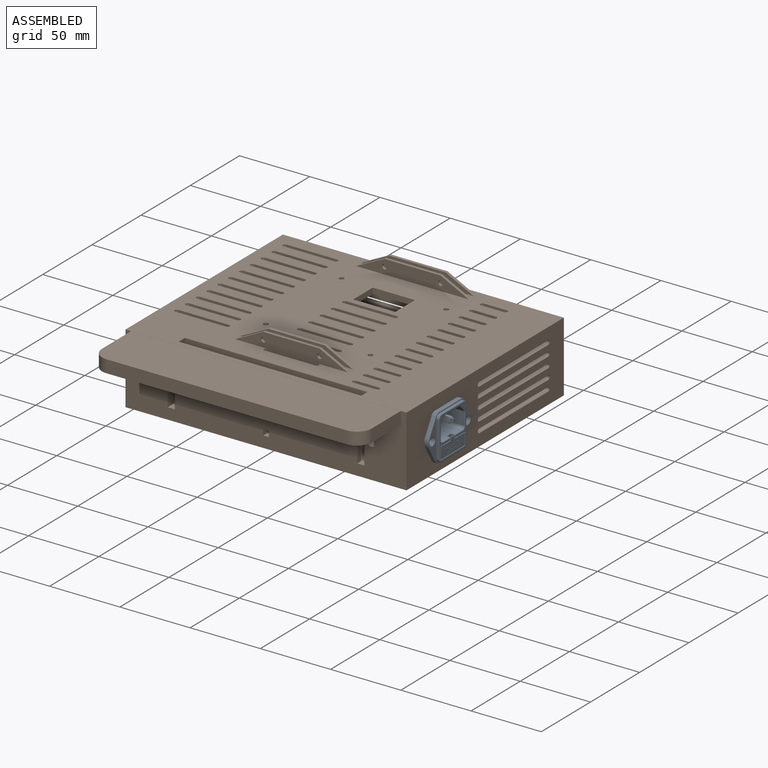
[diagram: assembled view]
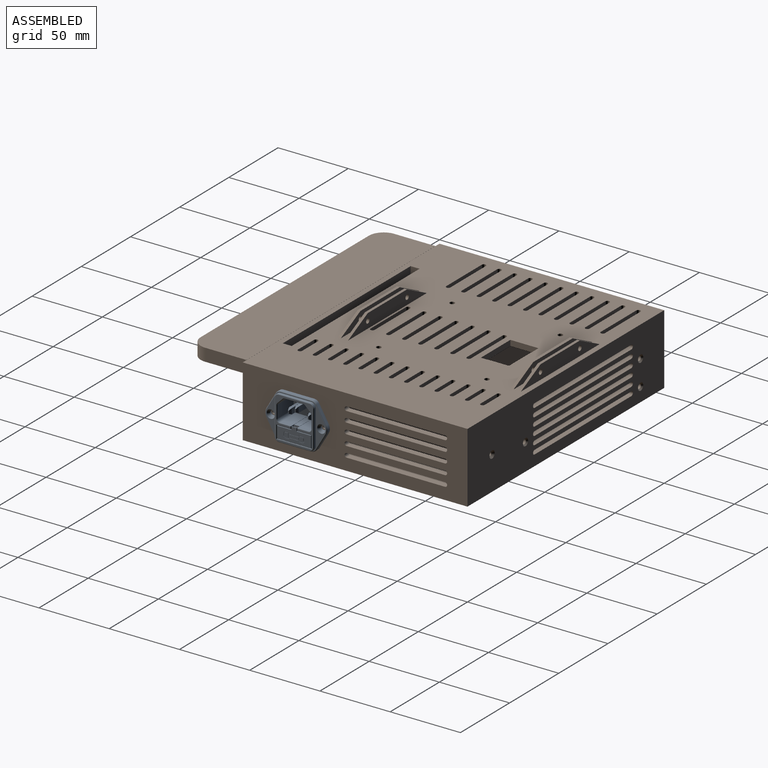
[diagram: assembled view, second angle]
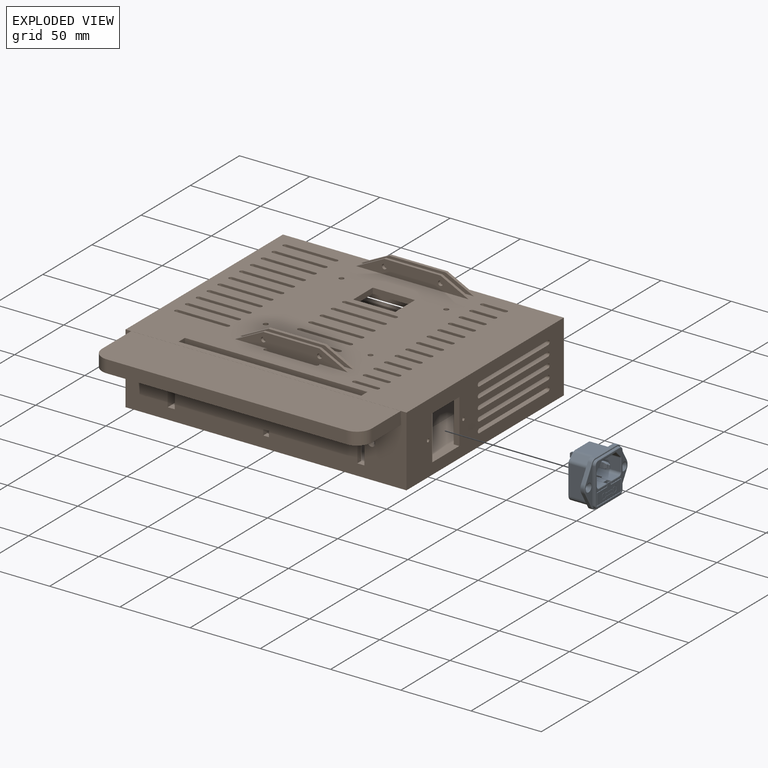
[diagram: exploded view]
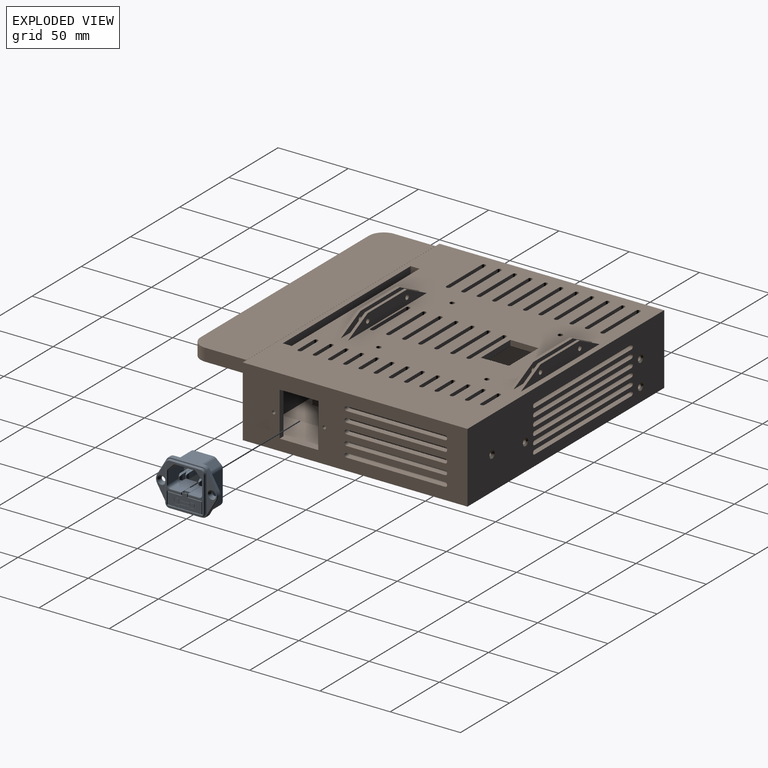
[diagram: exploded view, second angle]
FCSTD DOCUMENT  (FreeCAD 1.0R39109 (Git))
Label: BaseBox
License: All rights reserved
LicenseURL: http://en.wikipedia.org/wiki/All_rights_reserved
objects: Sketcher::SketchObject×31, PartDesign::Pocket×15, PartDesign::Pad×8, PartDesign::Plane×7, PartDesign::Hole×7, PartDesign::LinearPattern×7, PartDesign::Body×4, App::Link×3, PartDesign::Point×1, App::Part×1
note: 178 computed .brp shape members not serialized (recipe doc carries the construction recipe); baked Part::Feature solids carry a one-line shape summary decoded from their .brp
EXTERNAL_REF file=../Master Document.FCStd obj=Spreadsheet
EXTERNAL_REF file=C14 Panel Mount Power Plug Adapter w Fuse - JR-101-1F.FCStd obj=JR_101_1F
EXTERNAL_REF file=../IntegratedEnclosure/LRS-150 Meanwell.FCStd obj=LRS_150

FEATURE [Sketcher::SketchObject] Sketch  label="BaseBox Left Side Sketch"
  ArcFitTolerance = 1e-06
  AttachmentSupport = -> [YZ_Plane001]
  FullyConstrained = true
  MakeInternals = false
  MapMode = 5
  Placement = pos=(0,0,0) rot=(0.57735,0.57735,0.57735;2.0944rad)
  expr: Constraints[10] = <<Monitor Chassis Parameters>>.GSBasePowerBoxHeight - 2 * <<Monitor Chassis Parameters>>.GSBasePowerBoxSideThickness
  expr: Constraints[8] = <<Monitor Chassis Parameters>>.GSBasePowerBoxDepth - 2 * <<Monitor Chassis Parameters>>.GSBasePowerBoxSideThickness
  expr: Constraints[9] = 0.5 * (<<Monitor Chassis Parameters>>.GSBasePowerBoxDepth - 2 * <<Monitor Chassis Parameters>>.GSBasePowerBoxSideThickness)
  sketch-geometry (4):
    g0: LineSegment StartX=-76 StartY=42 StartZ=0 EndX=-76 EndY=0 EndZ=0
    g1: LineSegment StartX=-76 StartY=0 StartZ=0 EndX=76 EndY=0 EndZ=0
    g2: LineSegment StartX=76 StartY=0 StartZ=0 EndX=76 EndY=42 EndZ=0
    g3: LineSegment StartX=76 StartY=42 StartZ=0 EndX=-76 EndY=42 EndZ=0
  constraints (12):
    c: Coincident(g0,g1)
    c: Coincident(g1,g2)
    c: Coincident(g2,g3)
    c: Coincident(g3,g0)
    c: Vertical(g0)
    c: Vertical(g2)
    c: Horizontal(g1)
    c: Horizontal(g3)
    c: DistanceX(g0,g1) = 152
    c: DistanceX(g0,g-1) = 76
    c: DistanceY(g0,g0) = 42
    c: Horizontal(g-1,g0)
FEATURE [App::Link] Link  label="Monitor Chassis Parameters"
  LinkedObject = -> <external ../Master Document.FCStd>#Spreadsheet
FEATURE [PartDesign::Pad] Pad  label="BaseBox Left Side Pad"
  Direction = (1,0,0)
  Length = 4
  Length2 = 10
  Placement = pos=(0,0,0) rot=(1,1,1;2.0944rad)
  Profile = -> Sketch
  ReferenceAxis = -> Sketch [N_Axis]
  Suppressed = false
  Type = 0
  expr: Length = <<Monitor Chassis Parameters>>.GSBasePowerBoxSideThickness
FEATURE [Sketcher::SketchObject] Sketch001  label="BaseBox Enclosure Sketch"
  ArcFitTolerance = 1e-06
  AttachmentSupport = -> [YZ_Plane001]
  FullyConstrained = true
  MakeInternals = false
  MapMode = 5
  Placement = pos=(0,0,0) rot=(0.57735,0.57735,0.57735;2.0944rad)
  expr: Constraints[16] = 0.5 * (<<Monitor Chassis Parameters>>.GSBasePowerBoxDepth - 2 * <<Monitor Chassis Parameters>>.GSBasePowerBoxSideThickness)
  expr: Constraints[17] = <<Monitor Chassis Parameters>>.GSBasePowerBoxDepth - 2 * <<Monitor Chassis Parameters>>.GSBasePowerBoxSideThickness
  expr: Constraints[18] = <<Monitor Chassis Parameters>>.GSBasePowerBoxHeight - 2 * <<Monitor Chassis Parameters>>.GSBasePowerBoxSideThickness
  expr: Constraints[19] = <<Monitor Chassis Parameters>>.GSBasePowerBoxSideThickness
  expr: Constraints[20] = <<Monitor Chassis Parameters>>.GSBasePowerBoxSideThickness
  expr: Constraints[21] = <<Monitor Chassis Parameters>>.GSBasePowerBoxSideThickness
  expr: Constraints[23] = <<Monitor Chassis Parameters>>.GSBasePowerBoxSideThickness
  sketch-geometry (8):
    g0: LineSegment StartX=-80 StartY=46 StartZ=0 EndX=-80 EndY=-4 EndZ=0
    g1: LineSegment StartX=-80 StartY=-4 StartZ=0 EndX=80 EndY=-4 EndZ=0
    g2: LineSegment StartX=80 StartY=-4 StartZ=0 EndX=80 EndY=46 EndZ=0
    g3: LineSegment StartX=80 StartY=46 StartZ=0 EndX=-80 EndY=46 EndZ=0
    g4: LineSegment StartX=-76 StartY=42 StartZ=0 EndX=-76 EndY=0 EndZ=0
    g5: LineSegment StartX=-76 StartY=0 StartZ=0 EndX=76 EndY=0 EndZ=0
    g6: LineSegment StartX=76 StartY=0 StartZ=0 EndX=76 EndY=42 EndZ=0
    g7: LineSegment StartX=76 StartY=42 StartZ=0 EndX=-76 EndY=42 EndZ=0
  constraints (24):
    c: Coincident(g0,g1)
    c: Coincident(g1,g2)
    c: Coincident(g2,g3)
    c: Coincident(g3,g0)
    c: Vertical(g0)
    c: Vertical(g2)
    c: Horizontal(g1)
    c: Horizontal(g3)
    c: Coincident(g4,g5)
    c: Coincident(g5,g6)
    c: Coincident(g6,g7)
    c: Coincident(g7,g4)
    c: Vertical(g4)
    c: Vertical(g6)
    c: Horizontal(g5)
    c: Horizontal(g7)
    c: DistanceX(g4,g-1) = 76
    c: DistanceX(g4,g5) = 152
    c: DistanceY(g4,g4) = 42
    c: DistanceX(g0,g4) = 4
    c: DistanceY(g4,g0) = 4
    c: DistanceX(g5,g1) = 4
    c: Horizontal(g4,g-1)
    c: DistanceY(g0,g4) = 4
FEATURE [PartDesign::Pad] Pad001  label="BaseBox Enclosure Pad"
  BaseFeature = -> Pad
  Direction = (1,0,0)
  Length = 180
  Length2 = 10
  Placement = pos=(0,0,0) rot=(1,1,1;2.0944rad)
  Profile = -> Sketch001
  ReferenceAxis = -> Sketch001 [N_Axis]
  Suppressed = false
  Type = 0
  expr: Length = <<Monitor Chassis Parameters>>.GSBasePowerBoxWidth
FEATURE [PartDesign::Plane] DatumPlane  label="BaseBox Side Datum Plane"
  AttachmentOffset = pos=(0,0,-80) rot=(0,0,1;0rad)
  AttachmentSupport = -> [XZ_Plane001]
  Length = 230.772
  MapMode = 5
  Placement = pos=(0,80,-1.78e-14) rot=(1,0,0;1.5708rad)
  ResizeMode = 0
  Width = 106.772
  expr: .AttachmentOffset.Base.z = -0.5 * <<Monitor Chassis Parameters>>.GSBasePowerBoxDepth
FEATURE [Sketcher::SketchObject] Sketch002  label="BaseBox Side Screw Holes Sketch"
  ArcFitTolerance = 1e-06
  AttachmentSupport = -> [DatumPlane]
  FullyConstrained = true
  MakeInternals = false
  MapMode = 5
  Placement = pos=(0,80,-1.78e-14) rot=(1,0,0;1.5708rad)
  expr: Constraints[0] = <<Monitor Chassis Parameters>>.GSBasePowerBoxSupplyMountingScrewSize
  expr: Constraints[1] = <<Monitor Chassis Parameters>>.GSBasePowerBoxSupplyMountingScrewSize
  expr: Constraints[2] = <<Monitor Chassis Parameters>>.GSBasePowerBoxSupplyMountingScrewSize
  expr: Constraints[4] = <<Monitor Chassis Parameters>>.GSBasePowerBoxSupplyMountingLeftScrewOffsetFromRight
  expr: Constraints[5] = <<Monitor Chassis Parameters>>.GSBasePowerBoxSupplyMountingScrewOffsetFromRight
  expr: Constraints[6] = <<Monitor Chassis Parameters>>.GSBasePowerBoxSupplyMountingRightScrewHeight1
  expr: Constraints[7] = <<Monitor Chassis Parameters>>.GSBasePowerBoxSupplyMountingRightScrewHeight2
  expr: Constraints[8] = <<Monitor Chassis Parameters>>.GSBasePowerBoxSupplyMountingLeftScrewHeight
  sketch-geometry (3):
    g0: Circle CenterX=141 CenterY=15 CenterZ=0 NormalX=0 NormalY=0 NormalZ=1 AngleXU=0 Radius=1.7
    g1: Circle CenterX=24 CenterY=24 CenterZ=0 NormalX=0 NormalY=0 NormalZ=1 AngleXU=0 Radius=1.7
    g2: Circle CenterX=24 CenterY=6 CenterZ=0 NormalX=0 NormalY=0 NormalZ=1 AngleXU=0 Radius=1.7
  constraints (9):
    c: Diameter(g0) = 3.4
    c: Diameter(g1) = 3.4
    c: Diameter(g2) = 3.4
    c: Vertical(g1,g2)
    c: DistanceX(g-1,g0) = 141
    c: DistanceX(g-1,g2) = 24
    c: DistanceY(g-1,g2) = 6
    c: DistanceY(g-1,g1) = 24
    c: DistanceY(g-1,g0) = 15
FEATURE [PartDesign::Hole] Hole  label="BaseBox Side Screw Holes"
  BaseFeature = -> Pad001
  CustomThreadClearance = 0
  Depth = 25
  DepthType = 0
  Diameter = 3.4
  DrillForDepth = false
  DrillPoint = 1
  DrillPointAngle = 118
  HoleCutCountersinkAngle = 90
  HoleCutCustomValues = false
  HoleCutDepth = 0
  HoleCutDiameter = 5.3
  HoleCutType = 2
  ModelThread = false
  Placement = pos=(0,0,0) rot=(1,1,1;2.0944rad)
  Profile = -> Sketch002
  Reversed = true
  Suppressed = false
  Tapered = false
  TaperedAngle = 90
  ThreadClass = 0
  ThreadDepth = 25
  ThreadDepthType = 0
  ThreadDirection = 0
  ThreadFit = 0
  ThreadSize = 0
  ThreadType = 0
  Threaded = false
  UseCustomThreadClearance = false
  expr: Diameter = <<Monitor Chassis Parameters>>.GSBasePowerBoxSupplyMountingScrewSize
  expr: HoleCutDiameter = <<Monitor Chassis Parameters>>.GSM3BoltCountersinkDiameter
FEATURE [PartDesign::Plane] DatumPlane001  label="BaseBox Bottom Datum Plane"
  AttachmentOffset = pos=(0,0,-4) rot=(0,0,1;0rad)
  AttachmentSupport = -> [XY_Plane001]
  Length = 241.222
  MapMode = 5
  Placement = pos=(0,0,-4) rot=(0,0,1;0rad)
  ResizeMode = 0
  Width = 196.222
  expr: .AttachmentOffset.Base.z = -<<Monitor Chassis Parameters>>.GSBasePowerBoxSideThickness
FEATURE [Sketcher::SketchObject] Sketch003  label="BaseBox Bottom Screw Holes Sketch"
  ArcFitTolerance = 1e-06
  AttachmentSupport = -> [DatumPlane001]
  FullyConstrained = true
  MakeInternals = false
  MapMode = 5
  Placement = pos=(0,0,-4) rot=(0,0,1;0rad)
  expr: Constraints[1] = <<Monitor Chassis Parameters>>.GSBasePowerBoxSupplyMountingScrewSize
  expr: Constraints[2] = <<Monitor Chassis Parameters>>.GSBasePowerBoxSupplyMountingScrewSize
  expr: Constraints[3] = <<Monitor Chassis Parameters>>.GSBasePowerBoxSupplyMountingBottomScrewsBackOffset
  expr: Constraints[4] = <<Monitor Chassis Parameters>>.GSBasePowerBoxSupplyMountingBottomScrewOffsetFromLeft1
  expr: Constraints[5] = <<Monitor Chassis Parameters>>.GSBasePowerBoxSupplyMountingBottomScrewOffsetFromLeft2
  sketch-geometry (2):
    g0: Circle CenterX=139 CenterY=44 CenterZ=0 NormalX=0 NormalY=0 NormalZ=1 AngleXU=0 Radius=1.7
    g1: Circle CenterX=61 CenterY=44 CenterZ=0 NormalX=0 NormalY=0 NormalZ=1 AngleXU=0 Radius=1.7
  constraints (6):
    c: Horizontal(g0,g1)
    c: Diameter(g0) = 3.4
    c: Diameter(g1) = 3.4
    c: DistanceY(g1) = 44
    c: DistanceX(g-1,g0) = 139
    c: DistanceX(g-1,g1) = 61
FEATURE [PartDesign::Hole] Hole001  label="BaseBox Bottom Screw Holes"
  BaseFeature = -> Hole
  CustomThreadClearance = 0
  Depth = 25
  DepthType = 0
  Diameter = 3.4
  DrillForDepth = false
  DrillPoint = 1
  DrillPointAngle = 118
  HoleCutCountersinkAngle = 90
  HoleCutCustomValues = false
  HoleCutDepth = 0
  HoleCutDiameter = 5.3
  HoleCutType = 2
  ModelThread = false
  Placement = pos=(0,0,0) rot=(1,1,1;2.0944rad)
  Profile = -> Sketch003
  Reversed = true
  Suppressed = false
  Tapered = false
  TaperedAngle = 90
  ThreadClass = 0
  ThreadDepth = 25
  ThreadDepthType = 0
  ThreadDirection = 0
  ThreadFit = 0
  ThreadSize = 0
  ThreadType = 0
  Threaded = false
  UseCustomThreadClearance = false
  expr: Diameter = <<Monitor Chassis Parameters>>.GSBasePowerBoxSupplyMountingScrewSize
  expr: HoleCutDiameter = <<Monitor Chassis Parameters>>.GSM3BoltCountersinkDiameter
FEATURE [Sketcher::SketchObject] Sketch005  label="BaseBox Left Side Slots Sketch"
  ArcFitTolerance = 1e-06
  AttachmentSupport = -> [YZ_Plane001]
  FullyConstrained = false
  MakeInternals = false
  MapMode = 5
  Placement = pos=(0,0,0) rot=(0.57735,0.57735,0.57735;2.0944rad)
  expr: Constraints[3] = <<Monitor Chassis Parameters>>.GSBasePowerBoxCoolingSlotWidth
  sketch-geometry (4):
    g0: LineSegment StartX=55 StartY=4.30289 StartZ=0 EndX=-55 EndY=4.30289 EndZ=0
    g1: LineSegment StartX=55 StartY=7.30289 StartZ=0 EndX=-55 EndY=7.30289 EndZ=0
    g2: ArcOfCircle CenterX=55 CenterY=5.80289 CenterZ=0 NormalX=0 NormalY=0 NormalZ=1 AngleXU=0 Radius=1.5 StartAngle=4.71239 EndAngle=7.85398
    g3: ArcOfCircle CenterX=-55 CenterY=5.80289 CenterZ=0 NormalX=0 NormalY=0 NormalZ=1 AngleXU=0 Radius=1.5 StartAngle=1.5708 EndAngle=4.71239
  constraints (13):
    c: Horizontal(g0)
    c: Horizontal(g1)
    c: Vertical(g0,g1)
    c: DistanceY(g0,g1) = 3
    c: DistanceX(g-1,g0) = 55
    c: DistanceX(g0,g-1) = 55
    c: Coincident(g2,g1)
    c: Coincident(g2,g0)
    c: Vertical(g2,g1)
    c: Vertical(g0,g1)
    c: Coincident(g3,g1)
    c: Coincident(g3,g0)
    c: Vertical(g0,g3)
FEATURE [PartDesign::Pocket] Pocket  label="BaseBox Left Side Slots Pocket"
  BaseFeature = -> Hole001
  Direction = (-1,0,0)
  Length = 0
  Length2 = 5
  Placement = pos=(0,0,0) rot=(1,1,1;2.0944rad)
  Profile = -> Sketch005
  ReferenceAxis = -> Sketch005 [N_Axis]
  Reversed = true
  Suppressed = false
  Type = 2
FEATURE [PartDesign::LinearPattern] LinearPattern
  BaseFeature = -> Pocket
  Direction = -> Z_Axis001
  Length = 30
  Mode = 1
  Occurrences = 4
  Offset = 10
  Originals = -> [Pocket]
  Placement = pos=(0,0,0) rot=(1,1,1;2.0944rad)
  Suppressed = false
  TransformMode = 0
FEATURE [PartDesign::Plane] DatumPlane002  label="BaseBox Top DatumPlane"
  AttachmentOffset = pos=(0,0,46) rot=(0,0,1;0rad)
  AttachmentSupport = -> [XY_Plane001]
  Length = 241.222
  MapMode = 5
  Placement = pos=(0,0,46) rot=(0,0,1;0rad)
  ResizeMode = 0
  Width = 196.222
  expr: .AttachmentOffset.Base.z = <<Monitor Chassis Parameters>>.GSBasePowerBoxHeight - <<Monitor Chassis Parameters>>.GSBasePowerBoxSideThickness
FEATURE [Sketcher::SketchObject] Sketch006  label="BaseBox Top Holes Sketch"
  ArcFitTolerance = 1e-06
  AttachmentSupport = -> [DatumPlane002]
  FullyConstrained = true
  MakeInternals = false
  MapMode = 5
  Placement = pos=(0,0,46) rot=(0,0,1;0rad)
  expr: Constraints[10] = 0.5 * (<<Monitor Chassis Parameters>>.GSBasePowerBoxWidth - <<Monitor Chassis Parameters>>.GSShankShieldWidth) + 0.5 * <<Monitor Chassis Parameters>>.GSBaseBoxCapOuterWidth
  expr: Constraints[11] = 0.5 * <<Monitor Chassis Parameters>>.GSBasePowerBoxDepth - <<Monitor Chassis Parameters>>.GSBasePowerBoxSideThickness
  expr: Constraints[8] = <<Monitor Chassis Parameters>>.GSShankShieldThickness
  expr: Constraints[9] = <<Monitor Chassis Parameters>>.GSShankShieldWidth
  sketch-geometry (4):
    g0: LineSegment StartX=35 StartY=-69.65 StartZ=0 EndX=35 EndY=-76 EndZ=0
    g1: LineSegment StartX=35 StartY=-76 StartZ=0 EndX=165 EndY=-76 EndZ=0
    g2: LineSegment StartX=165 StartY=-76 StartZ=0 EndX=165 EndY=-69.65 EndZ=0
    g3: LineSegment StartX=165 StartY=-69.65 StartZ=0 EndX=35 EndY=-69.65 EndZ=0
  constraints (12):
    c: Coincident(g0,g1)
    c: Coincident(g1,g2)
    c: Coincident(g2,g3)
    c: Coincident(g3,g0)
    c: Vertical(g0)
    c: Vertical(g2)
    c: Horizontal(g1)
    c: Horizontal(g3)
    c: DistanceY(g0,g0) = 6.35
    c: DistanceX(g0,g2) = 130
    c: DistanceX(g-1,g0) = 35
    c: DistanceY(g0,g-1) = 76
FEATURE [PartDesign::Pocket] Pocket001  label="Shank Shield Pocket"
  BaseFeature = -> LinearPattern
  Direction = (0,0,-1)
  Length = 5
  Length2 = 5
  Placement = pos=(0,0,0) rot=(1,1,1;2.0944rad)
  Profile = -> Sketch006
  ReferenceAxis = -> Sketch006 [N_Axis]
  Suppressed = false
  Type = 2
FEATURE [Sketcher::SketchObject] Sketch007  label="Shank Shield Position Ribs Sketch"
  ArcFitTolerance = 1e-06
  AttachmentSupport = -> [XY_Plane001]
  FullyConstrained = true
  MakeInternals = false
  MapMode = 5
  expr: Constraints[12] = <<Monitor Chassis Parameters>>.GSBasePowerBoxSideThickness
  expr: Constraints[13] = <<Monitor Chassis Parameters>>.GSBasePowerBoxSideThickness
  expr: Constraints[14] = <<Monitor Chassis Parameters>>.GSShankShieldThickness
  expr: Constraints[15] = 0.5 * <<Monitor Chassis Parameters>>.GSBasePowerBoxDepth - <<Monitor Chassis Parameters>>.GSBasePowerBoxSideThickness
  expr: Constraints[17] = 0.5 * (<<Monitor Chassis Parameters>>.GSBasePowerBoxWidth - <<Monitor Chassis Parameters>>.GSShankShieldWidth) + 0.5 * <<Monitor Chassis Parameters>>.GSBaseBoxCapOuterWidth - <<Monitor Chassis Parameters>>.GSBasePowerBoxSideThickness
  sketch-geometry (6):
    g0: LineSegment StartX=4 StartY=-76 StartZ=0 EndX=35 EndY=-76 EndZ=0
    g1: LineSegment StartX=35 StartY=-76 StartZ=0 EndX=35 EndY=-69.65 EndZ=0
    g2: LineSegment StartX=35 StartY=-69.65 StartZ=0 EndX=144 EndY=-69.65 EndZ=0
    g3: LineSegment StartX=144 StartY=-69.65 StartZ=0 EndX=144 EndY=-65.65 EndZ=0
    g4: LineSegment StartX=144 StartY=-65.65 StartZ=0 EndX=4 EndY=-65.65 EndZ=0
    g5: LineSegment StartX=4 StartY=-65.65 StartZ=0 EndX=4 EndY=-76 EndZ=0
  constraints (18):
    c: Horizontal(g0)
    c: Coincident(g1,g0)
    c: Vertical(g1)
    c: Coincident(g2,g1)
    c: Horizontal(g2)
    c: Coincident(g3,g2)
    c: Vertical(g3)
    c: Coincident(g4,g3)
    c: Horizontal(g4)
    c: Coincident(g5,g4)
    c: Coincident(g5,g0)
    c: Vertical(g5)
    c: DistanceX(g-1,g4) = 4
    c: DistanceY(g2,g3) = 4
    c: DistanceY(g0,g1) = 6.35
    c: DistanceY(g0,g-1) = 76
    c: DistanceX(g4,g3) = 140
    c: DistanceX(g0,g0) = 31
FEATURE [PartDesign::Pad] Pad002  label="Shank Shield Position Ribs Pad"
  BaseFeature = -> Pocket001
  Direction = (0,0,1)
  Length = 42
  Length2 = 10
  Placement = pos=(0,0,0) rot=(1,1,1;2.0944rad)
  Profile = -> Sketch007
  ReferenceAxis = -> Sketch007 [N_Axis]
  Suppressed = false
  Type = 0
  expr: Length = <<Monitor Chassis Parameters>>.GSBasePowerBoxHeight - 2 * <<Monitor Chassis Parameters>>.GSBasePowerBoxSideThickness
FEATURE [Sketcher::SketchObject] Sketch008  label="Light Shield Sketch"
  ArcFitTolerance = 1e-06
  AttachmentSupport = -> [XY_Plane002]
  FullyConstrained = false
  MakeInternals = false
  MapMode = 5
  expr: Constraints[18] = <<Monitor Chassis Parameters>>.GSLightShieldTabWidth
  expr: Constraints[19] = <<Monitor Chassis Parameters>>.GSLightShieldTabWidth
  expr: Constraints[20] = <<Monitor Chassis Parameters>>.GSLightShieldTabDepth
  expr: Constraints[22] = <<Monitor Chassis Parameters>>.GSLightShieldDepth
  expr: Constraints[28] = <<Monitor Chassis Parameters>>.GSBasePowerBoxWidth + <<Monitor Chassis Parameters>>.GSBaseBoxCapOuterWidth - <<Monitor Chassis Parameters>>.GSBasePowerBoxSideThickness
  expr: Constraints[29] = <<Monitor Chassis Parameters>>.GSBasePowerBoxSideThickness
  sketch-geometry (10):
    g0: LineSegment StartX=4 StartY=-112.141 StartZ=0 EndX=4 EndY=-57.7713 EndZ=0
    g1: LineSegment StartX=4 StartY=-57.7713 StartZ=0 EndX=24 EndY=-57.7713 EndZ=0
    g2: LineSegment StartX=24 StartY=-57.7713 StartZ=0 EndX=24 EndY=-82.7713 EndZ=0
    g3: LineSegment StartX=24 StartY=-82.7713 StartZ=0 EndX=176 EndY=-82.7713 EndZ=0
    g4: LineSegment StartX=176 StartY=-82.7713 StartZ=0 EndX=176 EndY=-57.7713 EndZ=0
    g5: LineSegment StartX=176 StartY=-57.7713 StartZ=0 EndX=196 EndY=-57.7713 EndZ=0
    g6: LineSegment StartX=196 StartY=-57.7713 StartZ=0 EndX=196 EndY=-112.141 EndZ=0
    g7: LineSegment StartX=14.6305 StartY=-122.771 StartZ=0 EndX=185.37 EndY=-122.771 EndZ=0
    g8: ArcOfCircle CenterX=14.6305 CenterY=-112.141 CenterZ=0 NormalX=0 NormalY=0 NormalZ=1 AngleXU=0 Radius=10.6305 StartAngle=3.14159 EndAngle=4.71239
    g9: ArcOfCircle CenterX=185.37 CenterY=-112.141 CenterZ=0 NormalX=0 NormalY=0 NormalZ=1 AngleXU=0 Radius=10.6305 StartAngle=4.71239 EndAngle=6.28319
  constraints (30):
    c: Vertical(g0)
    c: Coincident(g1,g0)
    c: Horizontal(g1)
    c: Coincident(g2,g1)
    c: Vertical(g2)
    c: Coincident(g3,g2)
    c: Horizontal(g3)
    c: Coincident(g4,g3)
    c: Vertical(g4)
    c: Coincident(g5,g4)
    c: Horizontal(g5)
    c: Coincident(g6,g5)
    c: Vertical(g6)
    c: Horizontal(g7)
    c: Coincident(g8,g0)
    c: Coincident(g8,g7)
    c: Coincident(g9,g7)
    c: Coincident(g9,g6)
    c: DistanceX(g0,g1) = 20
    c: DistanceX(g4,g5) = 20
    c: DistanceY(g2,g1) = 25
    c: Horizontal(g1,g4)
    c: DistanceY(g7,g2) = 40
    c: Horizontal(g8,g0)
    c: Horizontal(g9,g6)
    c: Vertical(g8,g7)
    c: Vertical(g9,g7)
    c: Horizontal(g0,g6)
    c: DistanceX(g-1,g5) = 196
    c: DistanceX(g-1,g0) = 4
FEATURE [PartDesign::Pad] Pad003  label="Light Shield Pad"
  Direction = (0,0,1)
  Length = 9
  Length2 = 10
  Profile = -> Sketch008
  ReferenceAxis = -> Sketch008 [N_Axis]
  Suppressed = false
  Type = 0
  expr: Length = <<Monitor Chassis Parameters>>.GSLightShieldThickness + <<Monitor Chassis Parameters>>.GSBasePowerBoxSideThickness
FEATURE [PartDesign::Plane] DatumPlane003  label="BaseBox Front DatumPlane"
  AttachmentOffset = pos=(0,0,80) rot=(0,0,1;0rad)
  AttachmentSupport = -> [XZ_Plane001]
  Length = 230.772
  MapMode = 5
  Placement = pos=(0,-80,1.78e-14) rot=(1,0,0;1.5708rad)
  ResizeMode = 0
  Width = 106.772
  expr: .AttachmentOffset.Base.z = 0.5 * <<Monitor Chassis Parameters>>.GSBasePowerBoxDepth
FEATURE [Sketcher::SketchObject] Sketch009  label="Light Shield Tabs Sketch"
  ArcFitTolerance = 1e-06
  AttachmentSupport = -> [DatumPlane003]
  FullyConstrained = true
  MakeInternals = false
  MapMode = 5
  Placement = pos=(0,-80,1.78e-14) rot=(1,0,0;1.5708rad)
  expr: Constraints[10] = <<Monitor Chassis Parameters>>.GSBasePowerBoxSideThickness
  expr: Constraints[11] = <<Monitor Chassis Parameters>>.GSLightShieldHeight
  expr: Constraints[21] = <<Monitor Chassis Parameters>>.GSLightShieldTabThickness
  expr: Constraints[22] = <<Monitor Chassis Parameters>>.GSLightShieldTabWidth + <<Monitor Chassis Parameters>>.GSPartFitExtraToleranceDistance
  expr: Constraints[23] = <<Monitor Chassis Parameters>>.GSBasePowerBoxWidth + <<Monitor Chassis Parameters>>.GSBaseBoxCapOuterWidth - <<Monitor Chassis Parameters>>.GSBasePowerBoxSideThickness
  expr: Constraints[8] = <<Monitor Chassis Parameters>>.GSLightShieldTabWidth + 6 + <<Monitor Chassis Parameters>>.GSPartFitExtraToleranceDistance
  expr: Constraints[9] = <<Monitor Chassis Parameters>>.GSLightShieldTabThickness + 0.5 * <<Monitor Chassis Parameters>>.GSPartFitExtraToleranceDistance
  sketch-geometry (8):
    g0: LineSegment StartX=4 StartY=36.9 StartZ=0 EndX=30.2 EndY=36.9 EndZ=0
    g1: LineSegment StartX=30.2 StartY=36.9 StartZ=0 EndX=30.2 EndY=42 EndZ=0
    g2: LineSegment StartX=30.2 StartY=42 StartZ=0 EndX=4 EndY=42 EndZ=0
    g3: LineSegment StartX=4 StartY=42 StartZ=0 EndX=4 EndY=36.9 EndZ=0
    g4: LineSegment StartX=175.8 StartY=37 StartZ=0 EndX=196 EndY=37 EndZ=0
    g5: LineSegment StartX=196 StartY=37 StartZ=0 EndX=196 EndY=42 EndZ=0
    g6: LineSegment StartX=196 StartY=42 StartZ=0 EndX=175.8 EndY=42 EndZ=0
    g7: LineSegment StartX=175.8 StartY=42 StartZ=0 EndX=175.8 EndY=37 EndZ=0
  constraints (24):
    c: Coincident(g0,g1)
    c: Coincident(g1,g2)
    c: Coincident(g2,g3)
    c: Coincident(g3,g0)
    c: Horizontal(g0)
    c: Horizontal(g2)
    c: Vertical(g1)
    c: Vertical(g3)
    c: DistanceX(g2,g1) = 26.2
    c: DistanceY(g0,g2) = 5.1
    c: DistanceX(g-1,g0) = 4
    c: DistanceY(g-1,g2) = 42
    c: Coincident(g4,g5)
    c: Coincident(g5,g6)
    c: Coincident(g6,g7)
    c: Coincident(g7,g4)
    c: Horizontal(g4)
    c: Horizontal(g6)
    c: Vertical(g5)
    c: Vertical(g7)
    c: Horizontal(g6,g1)
    c: DistanceY(g4,g5) = 5
    c: DistanceX(g6,g5) = 20.2
    c: DistanceX(g-1,g5) = 196
FEATURE [PartDesign::Pocket] Pocket002  label="Light Shield Tabs Pocket"
  BaseFeature = -> Pad002
  Direction = (0,1,-2e-16)
  Length = 25
  Length2 = 5
  Placement = pos=(0,0,0) rot=(1,1,1;2.0944rad)
  Profile = -> Sketch009
  ReferenceAxis = -> Sketch009 [N_Axis]
  Suppressed = false
  Type = 0
  expr: Length = <<Monitor Chassis Parameters>>.GSLightShieldTabDepth
FEATURE [Sketcher::SketchObject] Sketch010  label="Overhang Fix Sketch 1"
  ArcFitTolerance = 1e-06
  AttachmentSupport = -> [Pad002]
  FullyConstrained = false
  MakeInternals = false
  MapMode = 5
  Placement = pos=(-1.46e-14,-65.65,7.3e-15) rot=(0.57735,0.57735,0.57735;4.18879rad)
  sketch-geometry (3):
    g0: LineSegment StartX=37.519 StartY=29.984 StartZ=0 EndX=41.9817 EndY=36.9429 EndZ=0
    g1: LineSegment StartX=41.9817 StartY=36.9429 StartZ=0 EndX=41.9817 EndY=29.984 EndZ=0
    g2: LineSegment StartX=41.9817 StartY=29.984 StartZ=0 EndX=37.519 EndY=29.984 EndZ=0
  constraints (5):
    c: Coincident(g1,g0)
    c: Vertical(g1)
    c: Coincident(g2,g1)
    c: Coincident(g2,g0)
    c: Horizontal(g2)
FEATURE [PartDesign::Pocket] Pocket003  label="Overhang Fix Pocket 1"
  BaseFeature = -> Pocket002
  Direction = (0,-1,0)
  Length = 5
  Length2 = 5
  Placement = pos=(0,0,0) rot=(1,1,1;2.0944rad)
  Profile = -> Sketch010
  ReferenceAxis = -> Sketch010 [N_Axis]
  Suppressed = false
  Type = 0
FEATURE [Sketcher::SketchObject] Sketch011  label="BaseBox Cap Side Sketch"
  ArcFitTolerance = 1e-06
  AttachmentSupport = -> [YZ_Plane003]
  FullyConstrained = true
  MakeInternals = false
  MapMode = 5
  Placement = pos=(0,0,0) rot=(0.57735,0.57735,0.57735;2.0944rad)
  expr: Constraints[10] = <<Monitor Chassis Parameters>>.GSBasePowerBoxHeight
  expr: Constraints[12] = <<Monitor Chassis Parameters>>.GSM3TappingScrewHoleDiameter
  expr: Constraints[23] = <<Monitor Chassis Parameters>>.GSPowerPlugCutoutWidth
  expr: Constraints[24] = <<Monitor Chassis Parameters>>.GSPowerPlugCutoutHeight
  expr: Constraints[25] = <<Monitor Chassis Parameters>>.GSPowerPlugScrewHoleOffset
  expr: Constraints[26] = <<Monitor Chassis Parameters>>.GSPowerPlugScrewHoleOffset
  expr: Constraints[29] = 0.5 * <<Monitor Chassis Parameters>>.GSPowerPlugCutoutHeight
  expr: Constraints[8] = <<Monitor Chassis Parameters>>.GSBasePowerBoxDepth
  expr: Constraints[9] = 0.5 * <<Monitor Chassis Parameters>>.GSBasePowerBoxDepth
  sketch-geometry (10):
    g0: LineSegment StartX=-80 StartY=50 StartZ=0 EndX=-80 EndY=0 EndZ=0
    g1: LineSegment StartX=-80 StartY=0 StartZ=0 EndX=80 EndY=0 EndZ=0
    g2: LineSegment StartX=80 StartY=0 StartZ=0 EndX=80 EndY=50 EndZ=0
    g3: LineSegment StartX=80 StartY=50 StartZ=0 EndX=-80 EndY=50 EndZ=0
    g4: Circle CenterX=22 CenterY=23.75 CenterZ=0 NormalX=0 NormalY=0 NormalZ=1 AngleXU=0 Radius=1.2
    g5: Circle CenterX=58 CenterY=23.75 CenterZ=0 NormalX=0 NormalY=0 NormalZ=1 AngleXU=0 Radius=1.2
    g6: LineSegment StartX=53.75 StartY=8 StartZ=0 EndX=53.75 EndY=39.5 EndZ=0
    g7: LineSegment StartX=53.75 StartY=39.5 StartZ=0 EndX=26.25 EndY=39.5 EndZ=0
    g8: LineSegment StartX=26.25 StartY=39.5 StartZ=0 EndX=26.25 EndY=8 EndZ=0
    g9: LineSegment StartX=26.25 StartY=8 StartZ=0 EndX=53.75 EndY=8 EndZ=0
  constraints (30):
    c: Coincident(g0,g1)
    c: Coincident(g1,g2)
    c: Coincident(g2,g3)
    c: Coincident(g3,g0)
    c: Vertical(g0)
    c: Vertical(g2)
    c: Horizontal(g1)
    c: Horizontal(g3)
    c: DistanceX(g0,g1) = 160
    c: DistanceX(g0,g-1) = 80
    c: DistanceY(g0,g0) = 50
    c: Horizontal(g0,g-1)
    c: Diameter(g4) = 2.4
    c: Diameter(g5) = 2.4
    c: Horizontal(g4,g5)
    c: Coincident(g6,g7)
    c: Coincident(g7,g8)
    c: Coincident(g8,g9)
    c: Coincident(g9,g6)
    c: Vertical(g6)
    c: Vertical(g8)
    c: Horizontal(g7)
    c: Horizontal(g9)
    c: DistanceX(g7,g6) = 27.5
    c: DistanceY(g6,g6) = 31.5
    c: DistanceX(g4,g7) = 4.25
    c: DistanceX(g6,g5) = 4.25
    c: DistanceY(g-1,g8) = 8
    c: DistanceX(g5,g1) = 22
    c: DistanceY(g8,g4) = 15.75
FEATURE [PartDesign::Pad] Pad004  label="BaseBox Cap Side Pad"
  Direction = (1,0,0)
  Length = 4
  Length2 = 10
  Placement = pos=(0,0,0) rot=(1,1,1;2.0944rad)
  Profile = -> Sketch011
  ReferenceAxis = -> Sketch011 [N_Axis]
  Suppressed = false
  Type = 0
  expr: Length = <<Monitor Chassis Parameters>>.GSBasePowerBoxSideThickness
FEATURE [Sketcher::SketchObject] Sketch012  label="BaseBox Cap Inner Sketch"
  ArcFitTolerance = 1e-06
  AttachmentSupport = -> [YZ_Plane003]
  FullyConstrained = true
  MakeInternals = false
  MapMode = 5
  Placement = pos=(0,0,0) rot=(0.57735,0.57735,0.57735;2.0944rad)
  expr: Constraints[14] = <<Monitor Chassis Parameters>>.GSBasePowerBoxCapSideThickness
  expr: Constraints[15] = <<Monitor Chassis Parameters>>.GSBasePowerBoxCapSideThickness
  expr: Constraints[16] = <<Monitor Chassis Parameters>>.GSBasePowerBoxCapSideThickness
  expr: Constraints[17] = <<Monitor Chassis Parameters>>.GSBasePowerBoxCapSideThickness
  expr: Constraints[19] = 2 * <<Monitor Chassis Parameters>>.GSBasePowerBoxCapSideThickness + 0.5 * <<Monitor Chassis Parameters>>.GSPartFitExtraToleranceDistance
  expr: Constraints[21] = <<Monitor Chassis Parameters>>.GSBasePowerBoxDepth - 2 * <<Monitor Chassis Parameters>>.GSBasePowerBoxSideThickness - <<Monitor Chassis Parameters>>.GSPartFitExtraToleranceDistance
  expr: Constraints[22] = 0.5 * (<<Monitor Chassis Parameters>>.GSBasePowerBoxDepth - 2 * <<Monitor Chassis Parameters>>.GSBasePowerBoxSideThickness - <<Monitor Chassis Parameters>>.GSPartFitExtraToleranceDistance)
  expr: Constraints[23] = <<Monitor Chassis Parameters>>.GSBasePowerBoxHeight - 2 * <<Monitor Chassis Parameters>>.GSBasePowerBoxSideThickness - <<Monitor Chassis Parameters>>.GSPartFitExtraToleranceDistance
  sketch-geometry (8):
    g0: LineSegment StartX=-73.9 StartY=43.9 StartZ=0 EndX=-73.9 EndY=6.1 EndZ=0
    g1: LineSegment StartX=-73.9 StartY=6.1 StartZ=0 EndX=73.9 EndY=6.1 EndZ=0
    g2: LineSegment StartX=73.9 StartY=6.1 StartZ=0 EndX=73.9 EndY=43.9 EndZ=0
    g3: LineSegment StartX=73.9 StartY=43.9 StartZ=0 EndX=-73.9 EndY=43.9 EndZ=0
    g4: LineSegment StartX=-75.9 StartY=45.9 StartZ=0 EndX=-75.9 EndY=4.1 EndZ=0
    g5: LineSegment StartX=-75.9 StartY=4.1 StartZ=0 EndX=75.9 EndY=4.1 EndZ=0
    g6: LineSegment StartX=75.9 StartY=4.1 StartZ=0 EndX=75.9 EndY=45.9 EndZ=0
    g7: LineSegment StartX=75.9 StartY=45.9 StartZ=0 EndX=-75.9 EndY=45.9 EndZ=0
  constraints (24):
    c: Coincident(g0,g1)
    c: Coincident(g1,g2)
    c: Coincident(g2,g3)
    c: Coincident(g3,g0)
    c: Vertical(g0)
    c: Vertical(g2)
    c: Horizontal(g3)
    c: Coincident(g4,g5)
    c: Coincident(g5,g6)
    c: Coincident(g6,g7)
    c: Coincident(g7,g4)
    c: Vertical(g4)
    c: Vertical(g6)
    c: Horizontal(g7)
    c: DistanceX(g4,g0) = 2
    c: DistanceY(g0,g4) = 2
    c: DistanceY(g4,g0) = 2
    c: DistanceX(g1,g5) = 2
    c: Horizontal(g5)
    c: DistanceY(g-1,g4) = 4.1
    c: Horizontal(g1)
    c: DistanceX(g4,g5) = 151.8
    c: DistanceX(g4,g-1) = 75.9
    c: DistanceY(g4,g4) = 41.8
FEATURE [PartDesign::Pad] Pad005  label="BaseBox Cap Inner Pad"
  BaseFeature = -> Pad004
  Direction = (1,0,0)
  Length = 30
  Length2 = 10
  Placement = pos=(0,0,0) rot=(1,1,1;2.0944rad)
  Profile = -> Sketch012
  ReferenceAxis = -> Sketch012 [N_Axis]
  Suppressed = false
  Type = 0
  expr: Length = <<Monitor Chassis Parameters>>.GSBasePowerBoxCapInnerDepth
FEATURE [Sketcher::SketchObject] Sketch013  label="BackBox Cap Outer Sketch"
  ArcFitTolerance = 1e-06
  AttachmentSupport = -> [YZ_Plane003]
  FullyConstrained = true
  MakeInternals = false
  MapMode = 5
  Placement = pos=(0,0,0) rot=(0.57735,0.57735,0.57735;2.0944rad)
  expr: Constraints[16] = 2 * <<Monitor Chassis Parameters>>.GSBasePowerBoxCapSideThickness + 0.5 * <<Monitor Chassis Parameters>>.GSPartFitExtraToleranceDistance
  expr: Constraints[17] = 2 * <<Monitor Chassis Parameters>>.GSBasePowerBoxCapSideThickness + 0.5 * <<Monitor Chassis Parameters>>.GSPartFitExtraToleranceDistance
  expr: Constraints[18] = 2 * <<Monitor Chassis Parameters>>.GSBasePowerBoxCapSideThickness + 0.5 * <<Monitor Chassis Parameters>>.GSPartFitExtraToleranceDistance
  expr: Constraints[19] = 2 * <<Monitor Chassis Parameters>>.GSBasePowerBoxCapSideThickness + 0.5 * <<Monitor Chassis Parameters>>.GSPartFitExtraToleranceDistance
  expr: Constraints[20] = <<Monitor Chassis Parameters>>.GSBasePowerBoxHeight
  expr: Constraints[21] = 0.5 * <<Monitor Chassis Parameters>>.GSBasePowerBoxDepth
  expr: Constraints[22] = <<Monitor Chassis Parameters>>.GSBasePowerBoxDepth
  sketch-geometry (8):
    g0: LineSegment StartX=-75.9 StartY=45.9 StartZ=0 EndX=-75.9 EndY=4.1 EndZ=0
    g1: LineSegment StartX=-75.9 StartY=4.1 StartZ=0 EndX=75.9 EndY=4.1 EndZ=0
    g2: LineSegment StartX=75.9 StartY=4.1 StartZ=0 EndX=75.9 EndY=45.9 EndZ=0
    g3: LineSegment StartX=75.9 StartY=45.9 StartZ=0 EndX=-75.9 EndY=45.9 EndZ=0
    g4: LineSegment StartX=-80 StartY=50 StartZ=0 EndX=-80 EndY=0 EndZ=0
    g5: LineSegment StartX=-80 StartY=0 StartZ=0 EndX=80 EndY=0 EndZ=0
    g6: LineSegment StartX=80 StartY=0 StartZ=0 EndX=80 EndY=50 EndZ=0
    g7: LineSegment StartX=80 StartY=50 StartZ=0 EndX=-80 EndY=50 EndZ=0
  constraints (24):
    c: Coincident(g0,g1)
    c: Coincident(g1,g2)
    c: Coincident(g2,g3)
    c: Coincident(g3,g0)
    c: Vertical(g0)
    c: Vertical(g2)
    c: Horizontal(g1)
    c: Horizontal(g3)
    c: Coincident(g4,g5)
    c: Coincident(g5,g6)
    c: Coincident(g6,g7)
    c: Coincident(g7,g4)
    c: Vertical(g4)
    c: Vertical(g6)
    c: Horizontal(g5)
    c: Horizontal(g7)
    c: DistanceX(g4,g0) = 4.1
    c: DistanceY(g0,g4) = 4.1
    c: DistanceY(g4,g0) = 4.1
    c: DistanceX(g1,g5) = 4.1
    c: DistanceY(g4,g4) = 50
    c: DistanceX(g4,g-1) = 80
    c: DistanceX(g4,g5) = 160
    c: Horizontal(g4,g-1)
FEATURE [PartDesign::Pad] Pad006  label="BackBox Cap Outer Pad"
  BaseFeature = -> Pad005
  Direction = (1,0,0)
  Length = 20
  Length2 = 10
  Placement = pos=(0,0,0) rot=(1,1,1;2.0944rad)
  Profile = -> Sketch013
  ReferenceAxis = -> Sketch013 [N_Axis]
  Suppressed = false
  Type = 0
  expr: Length = <<Monitor Chassis Parameters>>.GSBaseBoxCapOuterWidth
FEATURE [PartDesign::Point] DatumPoint
  AttacherType = Attacher::AttachEnginePoint
  AttachmentOffset = pos=(0,0,100) rot=(0,0,1;0rad)
  AttachmentSupport = -> [YZ_Plane001]
  MapMode = 32
  Placement = pos=(100,0,0) rot=(0.57735,0.57735,0.57735;2.0944rad)
  expr: .AttachmentOffset.Base.z = 0.5 * (<<Monitor Chassis Parameters>>.GSBasePowerBoxWidth + <<Monitor Chassis Parameters>>.GSBaseBoxCapOuterWidth)
FEATURE [PartDesign::Plane] DatumPlane004  label="BaseBox Cap Front DatumPlane"
  AttachmentOffset = pos=(0,0,-80) rot=(0,0,1;0rad)
  AttachmentSupport = -> [XZ_Plane003]
  Length = 67.8452
  MapMode = 5
  Placement = pos=(0,80,-1.78e-14) rot=(1,0,0;1.5708rad)
  ResizeMode = 0
  Width = 87.8452
  expr: .AttachmentOffset.Base.z = -0.5 * <<Monitor Chassis Parameters>>.GSBasePowerBoxDepth
FEATURE [Sketcher::SketchObject] Sketch014  label="BaseBox Cap Light Shield Cutout Sketch"
  ArcFitTolerance = 1e-06
  AttachmentSupport = -> [DatumPlane004]
  FullyConstrained = true
  MakeInternals = false
  MapMode = 5
  Placement = pos=(0,80,-1.78e-14) rot=(1,0,0;1.5708rad)
  expr: Constraints[10] = <<Monitor Chassis Parameters>>.GSBasePowerBoxSideThickness
  expr: Constraints[11] = <<Monitor Chassis Parameters>>.GSLightShieldHeight + <<Monitor Chassis Parameters>>.GSBasePowerBoxSideThickness
  expr: Constraints[8] = <<Monitor Chassis Parameters>>.GSLightShieldTabThickness
  expr: Constraints[9] = <<Monitor Chassis Parameters>>.GSLightShieldTabWidth + <<Monitor Chassis Parameters>>.GSPartFitExtraToleranceDistance
  sketch-geometry (4):
    g0: LineSegment StartX=4 StartY=41 StartZ=0 EndX=24.2 EndY=41 EndZ=0
    g1: LineSegment StartX=24.2 StartY=41 StartZ=0 EndX=24.2 EndY=46 EndZ=0
    g2: LineSegment StartX=24.2 StartY=46 StartZ=0 EndX=4 EndY=46 EndZ=0
    g3: LineSegment StartX=4 StartY=46 StartZ=0 EndX=4 EndY=41 EndZ=0
  constraints (12):
    c: Coincident(g0,g1)
    c: Coincident(g1,g2)
    c: Coincident(g2,g3)
    c: Coincident(g3,g0)
    c: Horizontal(g0)
    c: Horizontal(g2)
    c: Vertical(g1)
    c: Vertical(g3)
    c: DistanceY(g0,g1) = 5
    c: DistanceX(g2,g1) = 20.2
    c: DistanceX(g-1,g2) = 4
    c: DistanceY(g-1,g2) = 46
FEATURE [PartDesign::Pocket] Pocket004  label="BaseBox Cap LIght Shield Cutout Pocket"
  BaseFeature = -> Pad006
  Direction = (0,1,-2e-16)
  Length = 27
  Length2 = 5
  Placement = pos=(0,0,0) rot=(1,1,1;2.0944rad)
  Profile = -> Sketch014
  ReferenceAxis = -> Sketch014 [N_Axis]
  Reversed = true
  Suppressed = false
  Type = 0
  expr: Length = <<Monitor Chassis Parameters>>.GSLightShieldTabDepth + 2
FEATURE [Sketcher::SketchObject] Sketch015  label="BaseBox Top Port Sketch"
  ArcFitTolerance = 1e-06
  AttachmentSupport = -> [DatumPlane002]
  FullyConstrained = true
  MakeInternals = false
  MapMode = 5
  Placement = pos=(0,0,46) rot=(0,0,1;0rad)
  expr: Constraints[10] = 0.5 * <<Monitor Chassis Parameters>>.GSBasePowerBoxTotalWidth - 0.5 * <<Monitor Chassis Parameters>>.GSBaseBoxRearAccessPortLength
  expr: Constraints[11] = <<Monitor Chassis Parameters>>.GSBaseBoxRearAccessOffsetFromCenterline
  expr: Constraints[8] = <<Monitor Chassis Parameters>>.GSBaseBoxRearAccessPortDepth
  expr: Constraints[9] = <<Monitor Chassis Parameters>>.GSBaseBoxRearAccessPortLength
  sketch-geometry (4):
    g0: LineSegment StartX=85 StartY=50 StartZ=0 EndX=85 EndY=30 EndZ=0
    g1: LineSegment StartX=85 StartY=30 StartZ=0 EndX=115 EndY=30 EndZ=0
    g2: LineSegment StartX=115 StartY=30 StartZ=0 EndX=115 EndY=50 EndZ=0
    g3: LineSegment StartX=115 StartY=50 StartZ=0 EndX=85 EndY=50 EndZ=0
  constraints (12):
    c: Coincident(g0,g1)
    c: Coincident(g1,g2)
    c: Coincident(g2,g3)
    c: Coincident(g3,g0)
    c: Vertical(g0)
    c: Vertical(g2)
    c: Horizontal(g1)
    c: Horizontal(g3)
    c: DistanceY(g0,g0) = 20
    c: DistanceX(g0,g1) = 30
    c: DistanceX(g-1,g0) = 85
    c: DistanceY(g-1,g0) = 30
FEATURE [PartDesign::Pocket] Pocket005  label="BaseBox Top Port Pocket"
  BaseFeature = -> Pocket003
  Direction = (0,0,-1)
  Length = 5
  Length2 = 5
  Placement = pos=(0,0,0) rot=(1,1,1;2.0944rad)
  Profile = -> Sketch015
  ReferenceAxis = -> Sketch015 [N_Axis]
  Suppressed = false
  Type = 2
FEATURE [Sketcher::SketchObject] Sketch016  label="BaseBox Top Tower Holes Sketch"
  ArcFitTolerance = 1e-06
  AttachmentSupport = -> [DatumPlane002]
  FullyConstrained = false
  MakeInternals = false
  MapMode = 5
  Placement = pos=(0,0,46) rot=(0,0,1;0rad)
  expr: Constraints[0] = <<Monitor Chassis Parameters>>.GSM4TappingScrewHoleDiameter
  expr: Constraints[1] = 0.5 * <<Monitor Chassis Parameters>>.GSBasePowerBoxTotalWidth - 0.5 * <<Monitor Chassis Parameters>>.GSBackPlateWidth + 0.5 * <<Monitor Chassis Parameters>>.GSBackPlateFootWidth
  expr: Constraints[3] = 0.5 * <<Monitor Chassis Parameters>>.GSBasePowerBoxTotalWidth + 0.5 * <<Monitor Chassis Parameters>>.GSBackPlateWidth - 0.5 * <<Monitor Chassis Parameters>>.GSBackPlateFootWidth
  expr: Constraints[5] = <<Monitor Chassis Parameters>>.GSM4TappingScrewHoleDiameter
  expr: Constraints[6] = <<Monitor Chassis Parameters>>.GSM4TappingScrewHoleDiameter
  expr: Constraints[7] = <<Monitor Chassis Parameters>>.GSBasePowerBoxTowerFootEdgeOffsetBackFromCenter - 0.5 * <<Monitor Chassis Parameters>>.GSBackPlateFootLengthBackward
  expr: Constraints[8] = 0.5 * <<Monitor Chassis Parameters>>.GSBackPlateFootLengthBackward + <<Monitor Chassis Parameters>>.GSBackPlateFootScrewHoleForwardOffset + 2 * <<Monitor Chassis Parameters>>.GSBackPlateThickness
  sketch-geometry (4):
    g0: Circle CenterX=62.7 CenterY=50 CenterZ=0 NormalX=0 NormalY=0 NormalZ=1 AngleXU=0 Radius=1.7
    g1: Circle CenterX=62.7 CenterY=-27 CenterZ=0 NormalX=0 NormalY=0 NormalZ=1 AngleXU=0 Radius=1.7
    g2: Circle CenterX=137.3 CenterY=50 CenterZ=0 NormalX=0 NormalY=0 NormalZ=1 AngleXU=0 Radius=1.7
    g3: Circle CenterX=137.3 CenterY=-27 CenterZ=0 NormalX=0 NormalY=0 NormalZ=1 AngleXU=0 Radius=1.7
  constraints (11):
    c: Diameter(g0) = 3.4
    c: DistanceX(g-1,g1) = 62.7
    c: Horizontal(g0,g2)
    c: DistanceX(g-1,g3) = 137.3
    c: Horizontal(g1,g3)
    c: Diameter(g1) = 3.4
    c: Diameter(g3) = 3.4
    c: DistanceY(g-1,g0) = 50
    c: DistanceY(g1,g0) = 77
    c: Vertical(g2,g3)
    c: Vertical(g0,g1)
FEATURE [PartDesign::Hole] Hole002  label="BaseBox Top Tower Holes "
  BaseFeature = -> Pocket005
  CustomThreadClearance = 0
  Depth = 25
  DepthType = 0
  Diameter = 3.4
  DrillForDepth = false
  DrillPoint = 1
  DrillPointAngle = 118
  HoleCutCountersinkAngle = 90
  HoleCutCustomValues = false
  HoleCutDepth = 0
  HoleCutDiameter = 6.1
  HoleCutType = 0
  ModelThread = false
  Placement = pos=(0,0,0) rot=(1,1,1;2.0944rad)
  Profile = -> Sketch016
  Suppressed = false
  Tapered = false
  TaperedAngle = 90
  ThreadClass = 0
  ThreadDepth = 25
  ThreadDepthType = 0
  ThreadDirection = 0
  ThreadFit = 0
  ThreadSize = 0
  ThreadType = 0
  Threaded = false
  UseCustomThreadClearance = false
  expr: Diameter = <<Monitor Chassis Parameters>>.GSM4TappingScrewHoleDiameter
FEATURE [Sketcher::SketchObject] Sketch017  label="Basebox Top Cooling Slots Sketch 1"
  ArcFitTolerance = 1e-06
  AttachmentSupport = -> [DatumPlane002]
  FullyConstrained = false
  MakeInternals = false
  MapMode = 5
  Placement = pos=(0,0,46) rot=(0,0,1;0rad)
  expr: Constraints[4] = <<Monitor Chassis Parameters>>.GSBasePowerBoxCoolingSlotWidth
  sketch-geometry (4):
    g0: LineSegment StartX=9.65807 StartY=69.8545 StartZ=0 EndX=45.7597 EndY=69.8545 EndZ=0
    g1: LineSegment StartX=9.65807 StartY=66.8545 StartZ=0 EndX=45.7597 EndY=66.8545 EndZ=0
    g2: ArcOfCircle CenterX=9.65807 CenterY=68.3545 CenterZ=0 NormalX=0 NormalY=0 NormalZ=1 AngleXU=0 Radius=1.5 StartAngle=1.5708 EndAngle=4.71239
    g3: ArcOfCircle CenterX=45.7597 CenterY=68.3545 CenterZ=0 NormalX=0 NormalY=0 NormalZ=1 AngleXU=0 Radius=1.5 StartAngle=4.71239 EndAngle=7.85398
  constraints (11):
    c: Horizontal(g0)
    c: Horizontal(g1)
    c: Vertical(g0,g1)
    c: Vertical(g0,g1)
    c: DistanceY(g1,g0) = 3
    c: Coincident(g2,g0)
    c: Coincident(g2,g1)
    c: Coincident(g3,g0)
    c: Coincident(g3,g1)
    c: Vertical(g1,g3)
    c: Vertical(g1,g2)
FEATURE [Sketcher::SketchObject] Sketch018  label="Basebox Top Cooling Slots Sketch 2"
  ArcFitTolerance = 1e-06
  AttachmentSupport = -> [DatumPlane002]
  FullyConstrained = false
  MakeInternals = false
  MapMode = 5
  Placement = pos=(0,0,46) rot=(0,0,1;0rad)
  expr: Constraints[2] = <<Monitor Chassis Parameters>>.GSBasePowerBoxCoolingSlotWidth
  sketch-geometry (4):
    g0: LineSegment StartX=166.968 StartY=69.1863 StartZ=0 EndX=150.764 EndY=69.1863 EndZ=0
    g1: LineSegment StartX=150.764 StartY=66.1863 StartZ=0 EndX=166.968 EndY=66.1863 EndZ=0
    g2: ArcOfCircle CenterX=150.764 CenterY=67.6863 CenterZ=0 NormalX=0 NormalY=0 NormalZ=1 AngleXU=0 Radius=1.5 StartAngle=1.5708 EndAngle=4.71239
    g3: ArcOfCircle CenterX=166.968 CenterY=67.6863 CenterZ=0 NormalX=0 NormalY=0 NormalZ=1 AngleXU=0 Radius=1.5 StartAngle=4.71239 EndAngle=7.85398
  constraints (11):
    c: Horizontal(g0)
    c: Horizontal(g1)
    c: DistanceY(g1,g0) = 3
    c: Vertical(g0,g1)
    c: Vertical(g0,g1)
    c: Coincident(g2,g0)
    c: Coincident(g2,g1)
    c: Coincident(g3,g1)
    c: Coincident(g3,g0)
    c: Vertical(g2,g0)
    c: Vertical(g0,g3)
FEATURE [PartDesign::Pocket] Pocket007  label="Basebox Top Cooling Slots Pocket 2"
  BaseFeature = -> Hole002
  Direction = (0,0,-1)
  Length = 4
  Length2 = 5
  Placement = pos=(0,0,0) rot=(1,1,1;2.0944rad)
  Profile = -> Sketch018
  ReferenceAxis = -> Sketch018 [N_Axis]
  Suppressed = false
  Type = 0
  expr: Length = <<Monitor Chassis Parameters>>.GSBasePowerBoxSideThickness
FEATURE [PartDesign::LinearPattern] LinearPattern002  label="Basebox Top Cooling Slots Linear 2"
  BaseFeature = -> Pocket007
  Direction = -> Y_Axis001
  Length = 130
  Mode = 0
  Occurrences = 13
  Offset = 10.8333
  Originals = -> [Pocket007]
  Placement = pos=(0,0,0) rot=(1,1,1;2.0944rad)
  Reversed = true
  Suppressed = false
  TransformMode = 0
FEATURE [PartDesign::Pocket] Pocket008  label="Basebox Top Cooling Slots Pocket 1"
  BaseFeature = -> LinearPattern002
  Direction = (0,0,-1)
  Length = 4
  Length2 = 5
  Placement = pos=(0,0,0) rot=(1,1,1;2.0944rad)
  Profile = -> Sketch017
  ReferenceAxis = -> Sketch017 [N_Axis]
  Suppressed = false
  Type = 0
  expr: Length = <<Monitor Chassis Parameters>>.GSBasePowerBoxSideThickness
FEATURE [PartDesign::LinearPattern] LinearPattern003  label="Basebox Top Cooling Slots Linear 1"
  BaseFeature = -> Pocket008
  Direction = -> Y_Axis001
  Length = 110
  Mode = 0
  Occurrences = 11
  Offset = 11
  Originals = -> [Pocket008]
  Placement = pos=(0,0,0) rot=(1,1,1;2.0944rad)
  Reversed = true
  Suppressed = false
  TransformMode = 0
FEATURE [Sketcher::SketchObject] Sketch019  label="Basebox Top Cooling Slots Sketch 3"
  ArcFitTolerance = 1e-06
  AttachmentSupport = -> [DatumPlane002]
  FullyConstrained = false
  MakeInternals = false
  MapMode = 5
  Placement = pos=(0,0,46) rot=(0,0,1;0rad)
  sketch-geometry (4):
    g0: LineSegment StartX=82.9701 StartY=25.8301 StartZ=0 EndX=119.072 EndY=25.8301 EndZ=0
    g1: LineSegment StartX=82.9701 StartY=22.8301 StartZ=0 EndX=119.072 EndY=22.8301 EndZ=0
    g2: ArcOfCircle CenterX=82.9701 CenterY=24.3301 CenterZ=0 NormalX=0 NormalY=0 NormalZ=1 AngleXU=0 Radius=1.5 StartAngle=1.5708 EndAngle=4.71239
    g3: ArcOfCircle CenterX=119.072 CenterY=24.3301 CenterZ=0 NormalX=0 NormalY=0 NormalZ=1 AngleXU=0 Radius=1.5 StartAngle=4.71239 EndAngle=7.85398
  constraints (11):
    c: Horizontal(g0)
    c: Horizontal(g1)
    c: Vertical(g0,g1)
    c: Vertical(g0,g1)
    c: DistanceY(g1,g0) = 3
    c: Coincident(g2,g0)
    c: Coincident(g2,g1)
    c: Coincident(g3,g0)
    c: Coincident(g3,g1)
    c: Vertical(g1,g3)
    c: Vertical(g1,g2)
FEATURE [PartDesign::Pocket] Pocket009  label="Basebox Top Cooling Slots Pocket 3"
  BaseFeature = -> LinearPattern003
  Direction = (0,0,-1)
  Length = 4
  Length2 = 5
  Placement = pos=(0,0,0) rot=(1,1,1;2.0944rad)
  Profile = -> Sketch019
  ReferenceAxis = -> Sketch019 [N_Axis]
  Suppressed = false
  Type = 0
  expr: Length = <<Monitor Chassis Parameters>>.GSBasePowerBoxSideThickness
FEATURE [PartDesign::LinearPattern] LinearPattern004  label="Basebox Top Cooling Slots Pocket 3 LinearPattern"
  BaseFeature = -> Pocket009
  Direction = -> Y_Axis001
  Length = 80
  Mode = 0
  Occurrences = 8
  Offset = 11.4286
  Originals = -> [Pocket009]
  Placement = pos=(0,0,0) rot=(1,1,1;2.0944rad)
  Reversed = true
  Suppressed = false
  TransformMode = 0
FEATURE [Sketcher::SketchObject] Sketch020  label="Basebox Long Side Cooling Slots Sketch 1"
  ArcFitTolerance = 1e-06
  AttachmentSupport = -> [DatumPlane]
  FullyConstrained = false
  MakeInternals = false
  MapMode = 5
  Placement = pos=(0,80,-1.78e-14) rot=(1,0,0;1.5708rad)
  expr: Constraints[4] = <<Monitor Chassis Parameters>>.GSBasePowerBoxCoolingSlotWidth
  sketch-geometry (4):
    g0: LineSegment StartX=131.806 StartY=3.49127 StartZ=0 EndX=33.3924 EndY=3.49127 EndZ=0
    g1: LineSegment StartX=131.806 StartY=6.49127 StartZ=0 EndX=33.3924 EndY=6.49127 EndZ=0
    g2: ArcOfCircle CenterX=131.806 CenterY=4.99127 CenterZ=0 NormalX=0 NormalY=0 NormalZ=1 AngleXU=0 Radius=1.5 StartAngle=4.71239 EndAngle=7.85398
    g3: ArcOfCircle CenterX=33.3924 CenterY=4.99127 CenterZ=0 NormalX=0 NormalY=0 NormalZ=1 AngleXU=0 Radius=1.5 StartAngle=1.5708 EndAngle=4.71239
  constraints (11):
    c: Horizontal(g0)
    c: Horizontal(g1)
    c: Vertical(g1,g0)
    c: Vertical(g1,g0)
    c: DistanceY(g0,g1) = 3
    c: Coincident(g2,g1)
    c: Coincident(g2,g0)
    c: Coincident(g3,g1)
    c: Coincident(g3,g0)
    c: Vertical(g3,g1)
    c: Vertical(g2,g1)
FEATURE [PartDesign::Pocket] Pocket010  label="Basebox Long Side Cooling Slots Pocket"
  BaseFeature = -> LinearPattern004
  Direction = (0,1,-2e-16)
  Length = 4
  Length2 = 5
  Placement = pos=(0,0,0) rot=(1,1,1;2.0944rad)
  Profile = -> Sketch020
  ReferenceAxis = -> Sketch020 [N_Axis]
  Reversed = true
  Suppressed = false
  Type = 0
  expr: Length = <<Monitor Chassis Parameters>>.GSBasePowerBoxSideThickness
FEATURE [PartDesign::LinearPattern] LinearPattern005  label="Basebox Long Side Cooling Slots LinearPattern"
  BaseFeature = -> Pocket010
  Direction = -> Z_Axis001
  Length = 30
  Mode = 0
  Occurrences = 6
  Offset = 6
  Originals = -> [Pocket010]
  Placement = pos=(0,0,0) rot=(1,1,1;2.0944rad)
  Suppressed = false
  TransformMode = 0
FEATURE [App::Link] Link001  label="JR-101-1F008"
  LinkPlacement = pos=(200,-40,19.8) rot=(0.57735,0.57735,0.57735;2.0944rad)
  LinkedObject = -> <external C14 Panel Mount Power Plug Adapter w Fuse - JR-101-1F.FCStd>#JR_101_1F
  Placement = pos=(200,-40,19.8) rot=(0.57735,0.57735,0.57735;2.0944rad)
FEATURE [Sketcher::SketchObject] Sketch021  label="Case Rear Positioning Ribs Sketch"
  ArcFitTolerance = 1e-06
  AttachmentSupport = -> [DatumPlane002]
  ExternalGeometry = -> [DatumPoint]
  FullyConstrained = true
  MakeInternals = false
  MapMode = 5
  Placement = pos=(0,0,46) rot=(0,0,1;0rad)
  expr: Constraints[17] = <<Monitor Chassis Parameters>>.GSCaseSlotRibThickness
  expr: Constraints[18] = <<Monitor Chassis Parameters>>.GSCaseSlotRibThickness
  expr: Constraints[19] = <<Monitor Chassis Parameters>>.GSCaseSlotRibLength
  expr: Constraints[21] = <<Monitor Chassis Parameters>>.GSCaseWallThickness + <<Monitor Chassis Parameters>>.GSPartFitExtraToleranceDistance
  expr: Constraints[22] = 0.5 * <<Monitor Chassis Parameters>>.GSCaseSlotRibLength
  expr: Constraints[23] = 0.5 * <<Monitor Chassis Parameters>>.GSBasePowerBoxDepth - <<Monitor Chassis Parameters>>.GSBasePowerBoxSideThickness
  sketch-geometry (8):
    g0: LineSegment StartX=60 StartY=74 StartZ=0 EndX=140 EndY=74 EndZ=0
    g1: LineSegment StartX=140 StartY=74 StartZ=0 EndX=140 EndY=76 EndZ=0
    g2: LineSegment StartX=140 StartY=76 StartZ=0 EndX=60 EndY=76 EndZ=0
    g3: LineSegment StartX=60 StartY=76 StartZ=0 EndX=60 EndY=74 EndZ=0
    g4: LineSegment StartX=60 StartY=70.8 StartZ=0 EndX=60 EndY=68.8 EndZ=0
    g5: LineSegment StartX=60 StartY=68.8 StartZ=0 EndX=140 EndY=68.8 EndZ=0
    g6: LineSegment StartX=140 StartY=68.8 StartZ=0 EndX=140 EndY=70.8 EndZ=0
    g7: LineSegment StartX=140 StartY=70.8 StartZ=0 EndX=60 EndY=70.8 EndZ=0
  constraints (24):
    c: Coincident(g0,g1)
    c: Coincident(g1,g2)
    c: Coincident(g2,g3)
    c: Coincident(g3,g0)
    c: Horizontal(g0)
    c: Horizontal(g2)
    c: Vertical(g1)
    c: Vertical(g3)
    c: Coincident(g4,g5)
    c: Coincident(g5,g6)
    c: Coincident(g6,g7)
    c: Coincident(g7,g4)
    c: Vertical(g4)
    c: Vertical(g6)
    c: Horizontal(g5)
    c: Horizontal(g7)
    c: Vertical(g0,g4)
    c: DistanceY(g0,g2) = 2
    c: DistanceY(g4,g4) = 2
    c: DistanceX(g2,g1) = 80
    c: Vertical(g6,g0)
    c: DistanceY(g6,g0) = 3.2
    c: DistanceX(g4,g-3) = 40
    c: DistanceY(g-1,g2) = 76
FEATURE [PartDesign::Pad] Pad007  label="Case Rear Positioning Ribs Pad"
  BaseFeature = -> LinearPattern005
  Direction = (0,0,1)
  Length = 10
  Length2 = 10
  Placement = pos=(0,0,0) rot=(1,1,1;2.0944rad)
  Profile = -> Sketch021
  ReferenceAxis = -> Sketch021 [N_Axis]
  Suppressed = false
  Type = 0
FEATURE [Sketcher::SketchObject] Sketch022  label="Case Rear Positioning Rib Cutouts Sketch"
  ArcFitTolerance = 1e-06
  AttachmentSupport = -> [DatumPlane]
  ExternalGeometry = -> [DatumPoint]
  FullyConstrained = true
  MakeInternals = false
  MapMode = 5
  Placement = pos=(0,80,-1.78e-14) rot=(1,0,0;1.5708rad)
  expr: Constraints[10] = <<Monitor Chassis Parameters>>.GSBasePowerBoxHeight - <<Monitor Chassis Parameters>>.GSBasePowerBoxSideThickness
  expr: Constraints[12] = <<Monitor Chassis Parameters>>.GSCaseSlotRibHeight
  expr: Constraints[14] = 2 * <<Monitor Chassis Parameters>>.GSCaseSlotRibHeight
  expr: Constraints[15] = 2 * <<Monitor Chassis Parameters>>.GSCaseSlotRibHeight
  expr: Constraints[16] = <<Monitor Chassis Parameters>>.GSCaseSlotRibLength
  expr: Constraints[17] = 0.5 * <<Monitor Chassis Parameters>>.GSCaseSlotRibLength
  expr: Constraints[19] = <<Monitor Chassis Parameters>>.GSM4TappingScrewHoleDiameter
  expr: Constraints[20] = <<Monitor Chassis Parameters>>.GSM4TappingScrewHoleDiameter
  expr: Constraints[23] = 0.5 * <<Monitor Chassis Parameters>>.GSCaseSlotRibHeight
  sketch-geometry (8):
    g0: LineSegment StartX=120 StartY=56 StartZ=0 EndX=140 EndY=56 EndZ=0
    g1: LineSegment StartX=140 StartY=56 StartZ=0 EndX=140 EndY=46 EndZ=0
    g2: LineSegment StartX=140 StartY=46 StartZ=0 EndX=120 EndY=56 EndZ=0
    g3: LineSegment StartX=60 StartY=46 StartZ=0 EndX=60 EndY=56 EndZ=0
    g4: LineSegment StartX=60 StartY=56 StartZ=0 EndX=80 EndY=56 EndZ=0
    g5: LineSegment StartX=80 StartY=56 StartZ=0 EndX=60 EndY=46 EndZ=0
    g6: Circle CenterX=120 CenterY=51 CenterZ=0 NormalX=0 NormalY=0 NormalZ=1 AngleXU=0 Radius=1.7
    g7: Circle CenterX=80 CenterY=51 CenterZ=0 NormalX=0 NormalY=0 NormalZ=1 AngleXU=0 Radius=1.7
  constraints (24):
    c: Horizontal(g0)
    c: Coincident(g1,g0)
    c: Vertical(g1)
    c: Coincident(g2,g1)
    c: Coincident(g2,g0)
    c: Vertical(g3)
    c: Coincident(g4,g3)
    c: Horizontal(g4)
    c: Coincident(g5,g4)
    c: Coincident(g5,g3)
    c: DistanceY(g-1,g3) = 46
    c: Horizontal(g1,g3)
    c: DistanceY(g3,g3) = 10
    c: Horizontal(g0,g4)
    c: DistanceX(g3,g4) = 20
    c: DistanceX(g0,g0) = 20
    c: DistanceX(g3,g1) = 80
    c: DistanceX(g3,g-3) = 40
    c: Vertical(g6,g0)
    c: Diameter(g6) = 3.4
    c: Diameter(g7) = 3.4
    c: Vertical(g7,g4)
    c: Horizontal(g6,g7)
    c: DistanceY(g3,g7) = 5
FEATURE [PartDesign::Pocket] Pocket011  label="Case Rear Positioning Rib Cutouts"
  BaseFeature = -> Pad007
  Direction = (0,1,-2e-16)
  Length = 20
  Length2 = 5
  Placement = pos=(0,0,0) rot=(1,1,1;2.0944rad)
  Profile = -> Sketch022
  ReferenceAxis = -> Sketch022 [N_Axis]
  Reversed = true
  Suppressed = false
  Type = 0
FEATURE [PartDesign::LinearPattern] LinearPattern006  label="Case Front Positioning Rib Linear"
  BaseFeature = -> Pocket011
  Direction = -> Y_Axis001
  Length = 123
  Mode = 0
  Occurrences = 2
  Offset = 123
  Originals = -> [Pad007,Pocket011]
  Placement = pos=(0,0,0) rot=(1,1,1;2.0944rad)
  Reversed = true
  Suppressed = false
  TransformMode = 0
  expr: Length = <<Monitor Chassis Parameters>>.GSCaseWallInnerDepth
FEATURE [PartDesign::Plane] DatumPlane005  label="Light Shield Side DatumPlane"
  AttachmentSupport = -> [Pad003]
  Length = 164.963
  MapMode = 5
  Placement = pos=(196,0,0) rot=(0.57735,0.57735,0.57735;2.0944rad)
  ResizeMode = 0
  Width = 67.1914
FEATURE [Sketcher::SketchObject] Sketch023  label="Light Shield Tab Cutout Sketch"
  ArcFitTolerance = 1e-06
  AttachmentSupport = -> [DatumPlane005]
  ExternalGeometry = -> [Pad003]
  FullyConstrained = true
  MakeInternals = false
  MapMode = 5
  Placement = pos=(196,0,0) rot=(0.57735,0.57735,0.57735;2.0944rad)
  expr: Constraints[11] = <<Monitor Chassis Parameters>>.GSLightShieldTabDepth
  expr: Constraints[8] = <<Monitor Chassis Parameters>>.GSBasePowerBoxSideThickness
  expr: Constraints[9] = <<Monitor Chassis Parameters>>.GSLightShieldTabThickness
  sketch-geometry (4):
    g0: LineSegment StartX=-82.7713 StartY=9 StartZ=0 EndX=-82.7713 EndY=5 EndZ=0
    g1: LineSegment StartX=-82.7713 StartY=5 StartZ=0 EndX=-57.7713 EndY=5 EndZ=0
    g2: LineSegment StartX=-57.7713 StartY=5 StartZ=0 EndX=-57.7713 EndY=9 EndZ=0
    g3: LineSegment StartX=-57.7713 StartY=9 StartZ=0 EndX=-82.7713 EndY=9 EndZ=0
  constraints (12):
    c: Coincident(g0,g1)
    c: Coincident(g1,g2)
    c: Coincident(g2,g3)
    c: Coincident(g3,g0)
    c: Vertical(g0)
    c: Vertical(g2)
    c: Horizontal(g1)
    c: Horizontal(g3)
    c: DistanceY(g0,g0) = 4
    c: DistanceY(g-1,g0) = 5
    c: Vertical(g0,g-3)
    c: DistanceX(g0,g1) = 25
FEATURE [PartDesign::Pocket] Pocket012  label="Light Shield Tab Cutout Pad"
  BaseFeature = -> Pad003
  Direction = (-1,0,0)
  Length = 5
  Length2 = 5
  Profile = -> Sketch023
  ReferenceAxis = -> Sketch023 [N_Axis]
  Suppressed = false
  Type = 1
FEATURE [PartDesign::Body] Body001  label="Light Shield Body"
  AllowCompound = false
  Group = -> [Sketch008,Pad003,DatumPlane005,Sketch023,Pocket012]
  Origin = -> Origin002
  Placement = pos=(0,2.7,37) rot=(0,0,1;0rad)
  Tip = -> Pocket012
FEATURE [Sketcher::SketchObject] Sketch024  label="Front LED Strip Holes Sketch"
  ArcFitTolerance = 1e-06
  AttachmentSupport = -> [DatumPlane003]
  FullyConstrained = false
  MakeInternals = false
  MapMode = 5
  Placement = pos=(0,-80,1.78e-14) rot=(1,0,0;1.5708rad)
  expr: Constraints[10] = 0.5 * (<<Monitor Chassis Parameters>>.GSBasePowerBoxWidth - <<Monitor Chassis Parameters>>.GSShankShieldWidth) + 0.5 * <<Monitor Chassis Parameters>>.GSBaseBoxCapOuterWidth
  expr: Constraints[20] = <<Monitor Chassis Parameters>>.GSLEDStripHoleHeight
  expr: Constraints[21] = <<Monitor Chassis Parameters>>.GSShankShieldWidth
  expr: Constraints[22] = <<Monitor Chassis Parameters>>.GSLEDStripHoleTopElevation
  expr: Constraints[24] = <<Monitor Chassis Parameters>>.GSM4TappingScrewHoleDiameter
  expr: Constraints[25] = 0.5 * (<<Monitor Chassis Parameters>>.GSBasePowerBoxWidth + <<Monitor Chassis Parameters>>.GSBaseBoxCapOuterWidth) + 0.3 * <<Monitor Chassis Parameters>>.GSShankShieldWidth
  expr: Constraints[34] = <<Monitor Chassis Parameters>>.GSCalibrationToolConnectionHoleSideLength
  expr: Constraints[35] = <<Monitor Chassis Parameters>>.GSCalibrationToolConnectionHoleSideLength
  expr: Constraints[36] = -0.5 * <<Monitor Chassis Parameters>>.GSCalibrationToolConnectionHoleSideLength + 0.5 * (<<Monitor Chassis Parameters>>.GSBasePowerBoxWidth + <<Monitor Chassis Parameters>>.GSBaseBoxCapOuterWidth)
  expr: Constraints[37] = <<Monitor Chassis Parameters>>.GSCalibrationToolConnectionHoleBottomHeight - <<Monitor Chassis Parameters>>.GSBasePowerBoxSideThickness
  expr: Constraints[8] = <<Monitor Chassis Parameters>>.GSLEDStripHoleWidth
  expr: Constraints[9] = <<Monitor Chassis Parameters>>.GSLEDStripHoleHeight
  sketch-geometry (13):
    g0: LineSegment StartX=35 StartY=36 StartZ=0 EndX=30 EndY=36 EndZ=0
    g1: LineSegment StartX=30 StartY=36 StartZ=0 EndX=30 EndY=4 EndZ=0
    g2: LineSegment StartX=30 StartY=4 StartZ=0 EndX=35 EndY=4 EndZ=0
    g3: LineSegment StartX=35 StartY=4 StartZ=0 EndX=35 EndY=36 EndZ=0
    g4: LineSegment StartX=170 StartY=36 StartZ=0 EndX=165 EndY=36 EndZ=0
    g5: LineSegment StartX=165 StartY=36 StartZ=0 EndX=165 EndY=4 EndZ=0
    g6: LineSegment StartX=165 StartY=4 StartZ=0 EndX=170 EndY=4 EndZ=0
    g7: LineSegment StartX=170 StartY=4 StartZ=0 EndX=170 EndY=36 EndZ=0
    g8: Circle CenterX=139 CenterY=19 CenterZ=0 NormalX=0 NormalY=0 NormalZ=1 AngleXU=0 Radius=1.7
    g9: LineSegment StartX=98 StartY=8 StartZ=0 EndX=98 EndY=4 EndZ=0
    g10: LineSegment StartX=98 StartY=4 StartZ=0 EndX=102 EndY=4 EndZ=0
    g11: LineSegment StartX=102 StartY=4 StartZ=0 EndX=102 EndY=8 EndZ=0
    g12: LineSegment StartX=102 StartY=8 StartZ=0 EndX=98 EndY=8 EndZ=0
  constraints (38):
    c: Coincident(g0,g1)
    c: Coincident(g1,g2)
    c: Coincident(g2,g3)
    c: Coincident(g3,g0)
    c: Horizontal(g0)
    c: Horizontal(g2)
    c: Vertical(g1)
    c: Vertical(g3)
    c: DistanceX(g0,g0) = 5
    c: DistanceY(g1,g0) = 32
    c: DistanceX(g-1,g2) = 35
    c: Coincident(g4,g5)
    c: Coincident(g5,g6)
    c: Coincident(g6,g7)
    c: Coincident(g7,g4)
    c: Horizontal(g4)
    c: Horizontal(g6)
    c: Vertical(g5)
    c: Vertical(g7)
    c: DistanceX(g4,g4) = 5
    c: DistanceY(g5,g4) = 32
    c: DistanceX(g0,g4) = 130
    c: DistanceY(g-1,g0) = 36
    c: Horizontal(g0,g4)
    c: Diameter(g8) = 3.4
    c: DistanceX(g-1,g8) = 139
    c: Coincident(g9,g10)
    c: Coincident(g10,g11)
    c: Coincident(g11,g12)
    c: Coincident(g12,g9)
    c: Vertical(g9)
    c: Vertical(g11)
    c: Horizontal(g10)
    c: Horizontal(g12)
    c: DistanceX(g9,g11) = 4
    c: DistanceY(g9,g9) = 4
    c: DistanceX(g-1,g9) = 98
    c: DistanceY(g-1,g9) = 4
FEATURE [PartDesign::Pocket] Pocket013  label="Front LED Strip Holes Pocket"
  BaseFeature = -> LinearPattern006
  Direction = (0,1,-2e-16)
  Length = 35
  Length2 = 5
  Placement = pos=(0,0,0) rot=(1,1,1;2.0944rad)
  Profile = -> Sketch024
  ReferenceAxis = -> Sketch024 [N_Axis]
  Suppressed = false
  Type = 0
FEATURE [Sketcher::SketchObject] Sketch025  label="Front Shield Securement Holes Sketch"
  ArcFitTolerance = 1e-06
  AttachmentSupport = -> [DatumPlane003]
  FullyConstrained = true
  MakeInternals = false
  MapMode = 5
  Placement = pos=(0,-80,1.78e-14) rot=(1,0,0;1.5708rad)
  expr: Constraints[0] = <<Monitor Chassis Parameters>>.GSM4TappingScrewHoleDiameter
  expr: Constraints[1] = <<Monitor Chassis Parameters>>.GSM4TappingScrewHoleDiameter
  expr: Constraints[2] = 20
  expr: Constraints[4] = 0.5 * (<<Monitor Chassis Parameters>>.GSBasePowerBoxWidth + <<Monitor Chassis Parameters>>.GSBaseBoxCapOuterWidth) - 0.3 * <<Monitor Chassis Parameters>>.GSShankShieldWidth
  expr: Constraints[5] = 0.5 * (<<Monitor Chassis Parameters>>.GSBasePowerBoxWidth + <<Monitor Chassis Parameters>>.GSBaseBoxCapOuterWidth) + 0.3 * <<Monitor Chassis Parameters>>.GSShankShieldWidth
  sketch-geometry (2):
    g0: Circle CenterX=61 CenterY=20 CenterZ=0 NormalX=0 NormalY=0 NormalZ=1 AngleXU=0 Radius=1.7
    g1: Circle CenterX=139 CenterY=20 CenterZ=0 NormalX=0 NormalY=0 NormalZ=1 AngleXU=0 Radius=1.7
  constraints (6):
    c: Diameter(g0) = 3.4
    c: Diameter(g1) = 3.4
    c: DistanceY(g-1,g0) = 20
    c: Horizontal(g0,g1)
    c: DistanceX(g-1,g0) = 61
    c: DistanceX(g-1,g1) = 139
FEATURE [PartDesign::Hole] Hole003  label="Front Shield Securement Holes"
  BaseFeature = -> Pocket013
  CustomThreadClearance = 0
  Depth = 25
  DepthType = 0
  Diameter = 3.4
  DrillForDepth = false
  DrillPoint = 1
  DrillPointAngle = 118
  HoleCutCountersinkAngle = 90
  HoleCutCustomValues = false
  HoleCutDepth = 0
  HoleCutDiameter = 8
  HoleCutType = 2
  ModelThread = false
  Placement = pos=(0,0,0) rot=(1,1,1;2.0944rad)
  Profile = -> Sketch025
  Suppressed = false
  Tapered = false
  TaperedAngle = 90
  ThreadClass = 0
  ThreadDepth = 25
  ThreadDepthType = 0
  ThreadDirection = 0
  ThreadFit = 0
  ThreadSize = 0
  ThreadType = 0
  Threaded = false
  UseCustomThreadClearance = false
  expr: Diameter = <<Monitor Chassis Parameters>>.GSM4TappingScrewHoleDiameter
  expr: HoleCutDiameter = <<Monitor Chassis Parameters>>.GSM4BoltCountersinkDiameter
FEATURE [Sketcher::SketchObject] Sketch026  label="End Cap Securement Holes Front Hole Sketch"
  ArcFitTolerance = 1e-06
  AttachmentSupport = -> [DatumPlane003]
  FullyConstrained = true
  MakeInternals = false
  MapMode = 5
  Placement = pos=(0,-80,1.78e-14) rot=(1,0,0;1.5708rad)
  expr: Constraints[0] = <<Monitor Chassis Parameters>>.GSCapSecurementScrewDiameter
  expr: Constraints[1] = <<Monitor Chassis Parameters>>.GSCapSecurementScrewOffsetFromLeftSide
  expr: Constraints[2] = <<Monitor Chassis Parameters>>.GSCapSecurementScrewOffsetHeight
  sketch-geometry (1):
    g0: Circle CenterX=175 CenterY=20 CenterZ=0 NormalX=0 NormalY=0 NormalZ=1 AngleXU=0 Radius=1.2
  constraints (3):
    c: Diameter(g0) = 2.4
    c: DistanceX(g-1,g0) = 175
    c: DistanceY(g-1,g0) = 20
FEATURE [PartDesign::Hole] Hole004  label="End Cap Securement Front Hole"
  BaseFeature = -> Hole003
  CustomThreadClearance = 0
  Depth = 25
  DepthType = 0
  Diameter = 2.4
  DrillForDepth = false
  DrillPoint = 1
  DrillPointAngle = 118
  HoleCutCountersinkAngle = 90
  HoleCutCustomValues = false
  HoleCutDepth = 0
  HoleCutDiameter = 5.3
  HoleCutType = 2
  ModelThread = false
  Placement = pos=(0,0,0) rot=(1,1,1;2.0944rad)
  Profile = -> Sketch026
  Suppressed = false
  Tapered = false
  TaperedAngle = 90
  ThreadClass = 0
  ThreadDepth = 25
  ThreadDepthType = 0
  ThreadDirection = 0
  ThreadFit = 0
  ThreadSize = 0
  ThreadType = 0
  Threaded = false
  UseCustomThreadClearance = false
  expr: Diameter = <<Monitor Chassis Parameters>>.GSM3TappingScrewHoleDiameter
  expr: HoleCutDiameter = <<Monitor Chassis Parameters>>.GSM3BoltCountersinkDiameter
FEATURE [Sketcher::SketchObject] Sketch027  label="Cap Securement Screw Sketch"
  ArcFitTolerance = 1e-06
  AttachmentSupport = -> [DatumPlane004]
  FullyConstrained = true
  MakeInternals = false
  MapMode = 5
  Placement = pos=(0,80,-1.78e-14) rot=(1,0,0;1.5708rad)
  expr: Constraints[0] = <<Monitor Chassis Parameters>>.GSM3TappingScrewHoleDiameter
  expr: Constraints[1] = <<Monitor Chassis Parameters>>.GSCapSecurementScrewOffsetHeight + <<Monitor Chassis Parameters>>.GSBasePowerBoxSideThickness
  expr: Constraints[2] = <<Monitor Chassis Parameters>>.GSCapSecurementScrewOffsetFromRightSide
  sketch-geometry (1):
    g0: Circle CenterX=25 CenterY=24 CenterZ=0 NormalX=0 NormalY=0 NormalZ=1 AngleXU=0 Radius=1.2
  constraints (3):
    c: Diameter(g0) = 2.4
    c: DistanceY(g-1,g0) = 24
    c: DistanceX(g-1,g0) = 25
FEATURE [PartDesign::Pocket] Pocket014  label="Cap Securement Screw Pocket"
  BaseFeature = -> Pocket004
  Direction = (0,1,-2e-16)
  Length = 5
  Length2 = 5
  Placement = pos=(0,0,0) rot=(1,1,1;2.0944rad)
  Profile = -> Sketch027
  ReferenceAxis = -> Sketch027 [N_Axis]
  Reversed = true
  Suppressed = false
  Type = 1
FEATURE [Sketcher::SketchObject] Sketch028  label="Right Side Cooling Slots Sketch"
  ArcFitTolerance = 1e-06
  AttachmentSupport = -> [YZ_Plane003]
  FullyConstrained = true
  MakeInternals = false
  MapMode = 5
  Placement = pos=(0,0,0) rot=(0.57735,0.57735,0.57735;2.0944rad)
  expr: Constraints[10] = <<Monitor Chassis Parameters>>.GSBasePowerBoxCoolingSlotWidth
  sketch-geometry (4):
    g0: LineSegment StartX=6 StartY=11.5 StartZ=0 EndX=-64 EndY=11.5 EndZ=0
    g1: LineSegment StartX=6 StartY=8.5 StartZ=0 EndX=-64 EndY=8.5 EndZ=0
    g2: ArcOfCircle CenterX=6 CenterY=10 CenterZ=0 NormalX=0 NormalY=0 NormalZ=1 AngleXU=0 Radius=1.5 StartAngle=4.71239 EndAngle=7.85398
    g3: ArcOfCircle CenterX=-64 CenterY=10 CenterZ=0 NormalX=0 NormalY=0 NormalZ=1 AngleXU=0 Radius=1.5 StartAngle=1.5708 EndAngle=4.71239
  constraints (14):
    c: Horizontal(g0)
    c: Horizontal(g1)
    c: Vertical(g0,g1)
    c: Vertical(g0,g1)
    c: Coincident(g2,g0)
    c: Coincident(g2,g1)
    c: Vertical(g0,g2)
    c: Coincident(g3,g0)
    c: Coincident(g3,g1)
    c: Vertical(g0,g3)
    c: DistanceY(g1,g0) = 3
    c: DistanceY(g-1,g1) = 8.5
    c: DistanceX(g-1,g1) = 6
    c: DistanceX(g0,g0) = 70
FEATURE [PartDesign::Pocket] Pocket015  label="Right Side Cooling Slots Pocket"
  BaseFeature = -> Pocket014
  Direction = (-1,0,0)
  Length = 5
  Length2 = 5
  Placement = pos=(0,0,0) rot=(1,1,1;2.0944rad)
  Profile = -> Sketch028
  ReferenceAxis = -> Sketch028 [N_Axis]
  Reversed = true
  Suppressed = false
  Type = 1
FEATURE [PartDesign::LinearPattern] LinearPattern007  label="Right Side Cooling Slots LinearPattern007"
  BaseFeature = -> Pocket015
  Direction = -> Sketch028 [V_Axis]
  Length = 30
  Mode = 0
  Occurrences = 5
  Offset = 7.5
  Originals = -> [Pocket015]
  Placement = pos=(0,0,0) rot=(1,1,1;2.0944rad)
  Suppressed = false
  TransformMode = 0
FEATURE [PartDesign::Body] Body002  label="Cap Body"
  AllowCompound = false
  Group = -> [Pad004,Sketch011,Pad005,Sketch012,Sketch013,Pad006,DatumPlane004,Sketch014,Pocket004,Sketch027,Pocket014,Sketch028,Pocket015,LinearPattern007]
  Origin = -> Origin003
  Placement = pos=(200,-2.18e-14,-4) rot=(0,0,1;3.14159rad)
  Tip = -> LinearPattern007
FEATURE [PartDesign::Plane] DatumPlane006  label="Basebox Bottom DatumPlane"
  AttachmentOffset = pos=(0,0,-4) rot=(0,0,1;0rad)
  AttachmentSupport = -> [XY_Plane001]
  Length = 241.222
  MapMode = 5
  Placement = pos=(0,0,-4) rot=(0,0,1;0rad)
  ResizeMode = 0
  Width = 196.222
  expr: .AttachmentOffset.Base.z = -<<Monitor Chassis Parameters>>.GSBasePowerBoxSideThickness
FEATURE [Sketcher::SketchObject] Sketch029  label="Cross Base Attachment Screw Holes Sketch"
  ArcFitTolerance = 1e-06
  AttachmentSupport = -> [DatumPlane001]
  FullyConstrained = true
  MakeInternals = false
  MapMode = 5
  Placement = pos=(0,0,-4) rot=(0,0,1;0rad)
  expr: Constraints[0] = <<Monitor Chassis Parameters>>.GSM3TappingScrewHoleDiameter
  expr: Constraints[1] = <<Monitor Chassis Parameters>>.GSM3TappingScrewHoleDiameter
  expr: Constraints[2] = 0.3 * <<Monitor Chassis Parameters>>.GSBasePowerBoxDepth
  expr: Constraints[4] = 0.21 * <<Monitor Chassis Parameters>>.GSBasePowerBoxTotalWidth
  expr: Constraints[5] = 0.79 * <<Monitor Chassis Parameters>>.GSBasePowerBoxTotalWidth
  expr: Constraints[6] = <<Monitor Chassis Parameters>>.GSM3TappingScrewHoleDiameter
  expr: Constraints[9] = <<Monitor Chassis Parameters>>.GSM3TappingScrewHoleDiameter
  sketch-geometry (4):
    g0: Circle CenterX=158 CenterY=-48 CenterZ=0 NormalX=0 NormalY=0 NormalZ=1 AngleXU=0 Radius=1.2
    g1: Circle CenterX=42 CenterY=-48 CenterZ=0 NormalX=0 NormalY=0 NormalZ=1 AngleXU=0 Radius=1.2
    g2: Circle CenterX=166.5 CenterY=44.5 CenterZ=0 NormalX=0 NormalY=0 NormalZ=1 AngleXU=0 Radius=1.2
    g3: Circle CenterX=5.7 CenterY=69.2 CenterZ=0 NormalX=0 NormalY=0 NormalZ=1 AngleXU=0 Radius=1.2
  constraints (12):
    c: Diameter(g0) = 2.4
    c: Diameter(g1) = 2.4
    c: DistanceY(g1,g-1) = 48
    c: Horizontal(g1,g0)
    c: DistanceX(g-1,g1) = 42
    c: DistanceX(g-1,g0) = 158
    c: Diameter(g3) = 2.4
    c: DistanceY(g-1,g3) = 69.2
    c: DistanceX(g-1,g3) = 5.7
    c: Diameter(g2) = 2.4
    c: DistanceX(g-1,g2) = 166.5
    c: DistanceY(g-1,g2) = 44.5
FEATURE [App::Link] Link002  label="LRS-154"
  LinkPlacement = pos=(83.7,27.1,0.399985) rot=(0.57735,0.57735,0.57735;2.0944rad)
  LinkedObject = -> <external ../IntegratedEnclosure/LRS-150 Meanwell.FCStd>#LRS_150
  Placement = pos=(83.7,27.1,0.399985) rot=(0.57735,0.57735,0.57735;2.0944rad)
FEATURE [Sketcher::SketchObject] Sketch030  label="XCross Base Sketch"
  ArcFitTolerance = 1e-06
  AttachmentSupport = -> [XY_Plane004]
  FullyConstrained = false
  MakeInternals = false
  MapMode = 5
  expr: Constraints[10] = <<Monitor Chassis Parameters>>.GSXCrossLegWidth
  expr: Constraints[11] = <<Monitor Chassis Parameters>>.GSXCrossLegLength
  expr: Constraints[24] = <<Monitor Chassis Parameters>>.GSXCrossLegWidth
  expr: Constraints[39] = <<Monitor Chassis Parameters>>.GSXCrossLegWidth
  expr: Constraints[40] = 0.5 * <<Monitor Chassis Parameters>>.GSXCrossLegWidth
  expr: Constraints[54] = <<Monitor Chassis Parameters>>.GSXCrossLegWidth
  expr: Constraints[58] = 0.5 * <<Monitor Chassis Parameters>>.GSXCrossLegWidth
  sketch-geometry (23):
    g0: LineSegment StartX=109.489 StartY=11.617 StartZ=0 EndX=90.5108 EndY=-11.617 EndZ=0
    g1: LineSegment StartX=90.5108 StartY=-11.617 StartZ=0 EndX=245.405 EndY=-138.139 EndZ=0
    g2: LineSegment StartX=245.405 StartY=-138.139 StartZ=0 EndX=264.383 EndY=-114.905 EndZ=0
    g3: LineSegment StartX=264.383 StartY=-114.905 StartZ=0 EndX=109.489 EndY=11.617 EndZ=0
    g4: ArcOfCircle CenterX=254.894 CenterY=-126.522 CenterZ=0 NormalX=0 NormalY=0 NormalZ=1 AngleXU=0 Radius=15 StartAngle=4.02747 EndAngle=7.16906
    g5: GeomPoint X=100 Y=0 Z=0
    g6: LineSegment StartX=90.5108 StartY=-11.617 StartZ=0 EndX=109.489 EndY=11.617 EndZ=0
    g7: LineSegment StartX=109.489 StartY=11.617 StartZ=0 EndX=-45.4045 EndY=138.139 EndZ=0
    g8: LineSegment StartX=-45.4045 StartY=138.139 StartZ=0 EndX=-64.3829 EndY=114.905 EndZ=0
    g9: LineSegment StartX=-64.3829 StartY=114.905 StartZ=0 EndX=90.5108 EndY=-11.617 EndZ=0
    g10: ArcOfCircle CenterX=-54.8937 CenterY=126.522 CenterZ=0 NormalX=0 NormalY=0 NormalZ=1 AngleXU=0 Radius=15 StartAngle=0.885875 EndAngle=4.02747
    g11: LineSegment StartX=109.312 StartY=-11.7598 StartZ=0 EndX=90.6883 EndY=11.7598 EndZ=0
    g12: LineSegment StartX=90.6883 StartY=11.7598 StartZ=0 EndX=-66.1089 EndY=-112.396 EndZ=0
    g13: LineSegment StartX=-66.1089 StartY=-112.396 StartZ=0 EndX=-47.4855 EndY=-135.915 EndZ=0
    g14: LineSegment StartX=-47.4855 StartY=-135.915 StartZ=0 EndX=109.312 EndY=-11.7598 EndZ=0
    g15: ArcOfCircle CenterX=-56.7972 CenterY=-124.156 CenterZ=0 NormalX=0 NormalY=0 NormalZ=1 AngleXU=0 Radius=15 StartAngle=2.24053 EndAngle=5.38212
    g16: GeomPoint X=100 Y=0 Z=0
    g17: GeomPoint X=100 Y=0 Z=0
    g18: LineSegment StartX=90.6883 StartY=11.7598 StartZ=0 EndX=109.312 EndY=-11.7598 EndZ=0
    g19: LineSegment StartX=109.312 StartY=-11.7598 StartZ=0 EndX=266.109 EndY=112.396 EndZ=0
    g20: LineSegment StartX=266.109 StartY=112.396 StartZ=0 EndX=247.486 EndY=135.915 EndZ=0
    g21: LineSegment StartX=247.486 StartY=135.915 StartZ=0 EndX=90.6883 EndY=11.7598 EndZ=0
    g22: ArcOfCircle CenterX=256.797 CenterY=124.156 CenterZ=0 NormalX=0 NormalY=0 NormalZ=1 AngleXU=0 Radius=15 StartAngle=5.38212 EndAngle=8.52372
  constraints (62):
    c: Coincident(g0,g1)
    c: Coincident(g1,g2)
    c: Coincident(g2,g3)
    c: Coincident(g3,g0)
    c: Parallel(g1,g3)
    c: Parallel(g2,g0)
    c: Perpendicular(g2,g1)
    c: Coincident(g4,g1)
    c: Coincident(g4,g2)
    c: PointOnObject(g4,g2)
    c: Distance(g0,g0) = 30
    c: Distance(g0,g2) = 200
    c: PointOnObject(g5,g-1)
    c: DistanceX(g-1,g5) = 100
    c: Coincident(g6,g7)
    c: Coincident(g7,g8)
    c: Coincident(g8,g9)
    c: Coincident(g9,g6)
    c: Parallel(g7,g9)
    c: Parallel(g8,g6)
    c: Perpendicular(g8,g7)
    c: Coincident(g10,g7)
    c: Coincident(g10,g8)
    c: PointOnObject(g10,g8)
    c: Distance(g6,g6) = 30
    c: Distance(g6,g8) = 200
    c: Coincident(g11,g12)
    c: Coincident(g12,g13)
    c: Coincident(g13,g14)
    c: Coincident(g14,g11)
    c: Parallel(g12,g14)
    c: Parallel(g13,g11)
    c: Perpendicular(g13,g12)
    c: Coincident(g15,g12)
    c: Coincident(g15,g13)
    c: PointOnObject(g15,g13)
    c: PointOnObject(g16,g-1)
    c: DistanceX(g-1,g16) = 100
    c: PointOnObject(g16,g11)
    c: Distance(g11,g11) = 30
    c: Distance(g16,g11) = 15
    c: Distance(g11,g13) = 200
    c: PointOnObject(g17,g-1)
    c: DistanceX(g-1,g17) = 100
    c: Coincident(g18,g19)
    c: Coincident(g19,g20)
    c: Coincident(g20,g21)
    c: Coincident(g21,g18)
    c: Parallel(g19,g21)
    c: Parallel(g20,g18)
    c: Perpendicular(g20,g19)
    c: Coincident(g22,g19)
    c: Coincident(g22,g20)
    c: PointOnObject(g22,g20)
    c: Distance(g18,g18) = 30
    c: Distance(g18,g20) = 200
    c: Parallel(g21,g12)
    c: PointOnObject(g5,g0)
    c: Distance(g0,g5) = 15
    c: PointOnObject(g5,g6)
    c: Coincident(g0,g6)
    c: Coincident(g18,g11)
FEATURE [PartDesign::Body] Body003  label="XCross Base"
  AllowCompound = false
  Group = -> [Sketch030]
  Origin = -> Origin004
FEATURE [PartDesign::Hole] Hole005  label="Cross Base Attachment Screw Holes Hole"
  BaseFeature = -> Hole004
  CustomThreadClearance = 0
  Depth = 25
  DepthType = 0
  Diameter = 2.4
  DrillForDepth = false
  DrillPoint = 1
  DrillPointAngle = 118
  HoleCutCountersinkAngle = 90
  HoleCutCustomValues = false
  HoleCutDepth = 0
  HoleCutDiameter = 5.3
  HoleCutType = 2
  ModelThread = false
  Placement = pos=(0,0,0) rot=(1,1,1;2.0944rad)
  Profile = -> Sketch029
  Reversed = true
  Suppressed = false
  Tapered = false
  TaperedAngle = 90
  ThreadClass = 0
  ThreadDepth = 25
  ThreadDepthType = 0
  ThreadDirection = 0
  ThreadFit = 0
  ThreadSize = 0
  ThreadType = 0
  Threaded = false
  UseCustomThreadClearance = false
  expr: Diameter = <<Monitor Chassis Parameters>>.GSM3TappingScrewHoleDiameter
  expr: HoleCutDiameter = <<Monitor Chassis Parameters>>.GSM3BoltCountersinkDiameter
FEATURE [Sketcher::SketchObject] Sketch031  label="End Cap Securement Holes Back Hole Sketch"
  ArcFitTolerance = 1e-06
  AttachmentSupport = -> [DatumPlane]
  FullyConstrained = true
  MakeInternals = false
  MapMode = 5
  Placement = pos=(0,80,-1.78e-14) rot=(1,0,0;1.5708rad)
  expr: Constraints[0] = <<Monitor Chassis Parameters>>.GSCapSecurementScrewOffsetHeight
  expr: Constraints[1] = <<Monitor Chassis Parameters>>.GSCapSecurementScrewOffsetFromLeftSide
  expr: Constraints[2] = <<Monitor Chassis Parameters>>.GSCapSecurementScrewDiameter
  sketch-geometry (1):
    g0: Circle CenterX=175 CenterY=20 CenterZ=0 NormalX=0 NormalY=0 NormalZ=1 AngleXU=0 Radius=1.2
  constraints (3):
    c: DistanceY(g-1,g0) = 20
    c: DistanceX(g-1,g0) = 175
    c: Diameter(g0) = 2.4
FEATURE [PartDesign::Hole] Hole006  label="End Cap Securement Holes Back Hole"
  BaseFeature = -> Hole005
  CustomThreadClearance = 0
  Depth = 25
  DepthType = 0
  Diameter = 2.4
  DrillForDepth = false
  DrillPoint = 1
  DrillPointAngle = 118
  HoleCutCountersinkAngle = 90
  HoleCutCustomValues = false
  HoleCutDepth = 0
  HoleCutDiameter = 5.3
  HoleCutType = 2
  ModelThread = false
  Placement = pos=(0,0,0) rot=(1,1,1;2.0944rad)
  Profile = -> Sketch031
  Reversed = true
  Suppressed = false
  Tapered = false
  TaperedAngle = 90
  ThreadClass = 0
  ThreadDepth = 25
  ThreadDepthType = 0
  ThreadDirection = 0
  ThreadFit = 0
  ThreadSize = 0
  ThreadType = 0
  Threaded = false
  UseCustomThreadClearance = false
  expr: Diameter = <<Monitor Chassis Parameters>>.GSM3TappingScrewHoleDiameter
  expr: HoleCutDiameter = <<Monitor Chassis Parameters>>.GSM3BoltCountersinkDiameter
FEATURE [PartDesign::Body] Body  label="BaseBox Body"
  AllowCompound = false
  Group = -> [Sketch,Pad,Sketch001,Pad001,DatumPlane,Sketch002,Hole,DatumPlane001,Sketch003,Hole001,Sketch005,Pocket,LinearPattern,DatumPlane002,Sketch006,Pocket001,Sketch007,Pad002,DatumPlane003,Sketch009,Pocket002,Sketch010,Pocket003,DatumPoint,Sketch015,Pocket005,Sketch016,Hole002,Sketch017,Sketch018,Pocket007,LinearPattern002,Pocket008,LinearPattern003,Sketch019,Pocket009,LinearPattern004,Sketch020,+18 more]
  Origin = -> Origin001
  Tip = -> Hole006
FEATURE [App::Part] Part  label="BaseBox Part"
  Group = -> [Body,Body001,Body002]
  Origin = -> Origin
